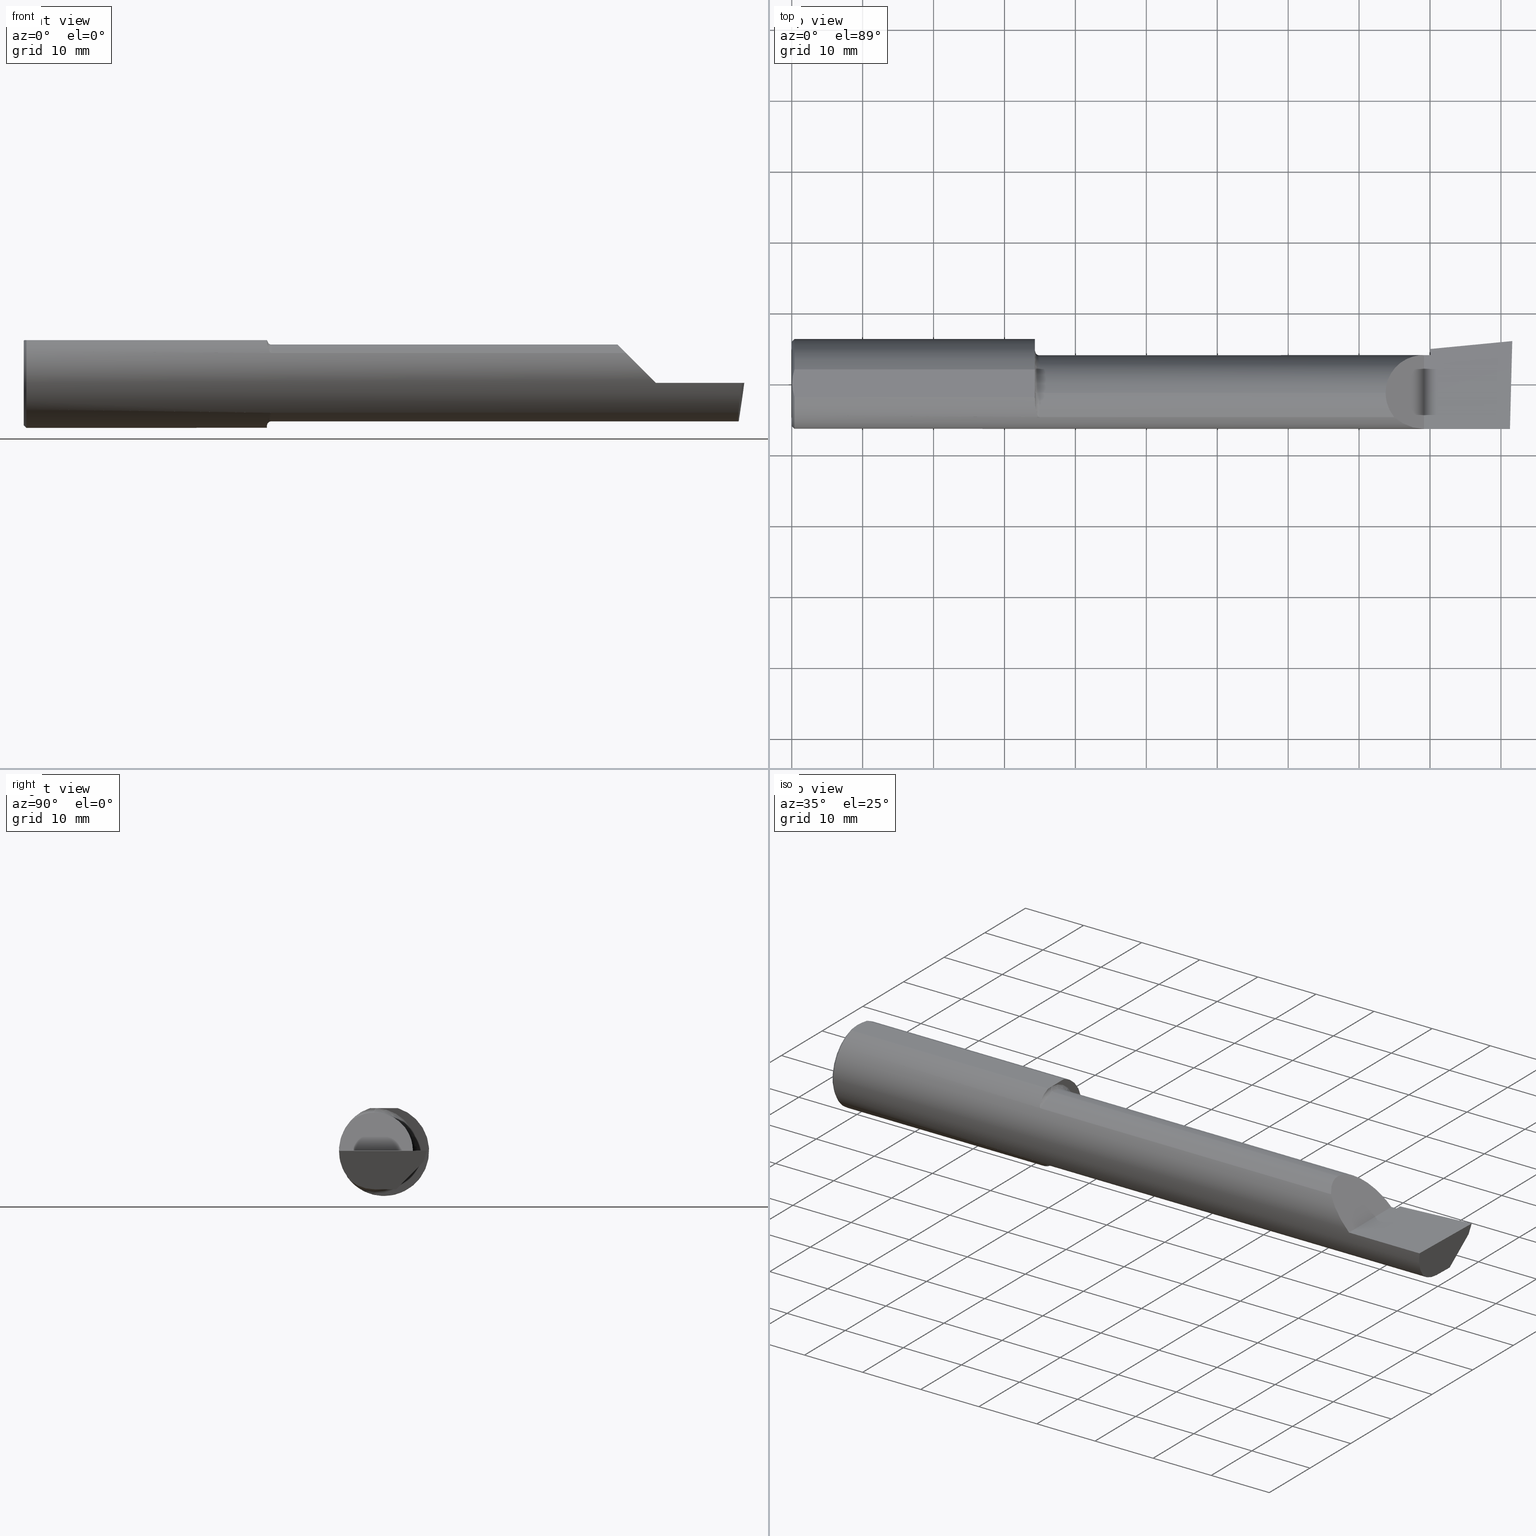
[diagram: canonical four-view strip — front | top / right | iso, engineering-drawing reading convention]
A machine part, canonical four-view strip (front | top / right | iso — engineering-drawing reading convention). The complete STEP part file that produces these views, byte-faithful:
ISO-10303-21;
HEADER;
FILE_DESCRIPTION (( 'STEP AP214' ),
    '1' );
FILE_NAME ('B4902600.STEP',
    '2020-05-06T20:04:31',
    ( '' ),
    ( '' ),
    'SwSTEP 2.0',
    'SolidWorks 2018',
    '' );
FILE_SCHEMA (( 'AUTOMOTIVE_DESIGN' ));
ENDSEC;

DATA;
#1 = CARTESIAN_POINT ( 'NONE',  ( 1.350000000000000089, -0.05299999999999996381, -0.2381499999999997230 ) ) ;
#2 = ORIENTED_EDGE ( 'NONE', *, *, #128, .F. ) ;
#3 = EDGE_LOOP ( 'NONE', ( #623, #166, #536, #9 ) ) ;
#4 = CARTESIAN_POINT ( 'NONE',  ( 0.0000000000000000000, -0.05299999999999998462, 0.0000000000000000000 ) ) ;
#5 = CARTESIAN_POINT ( 'NONE',  ( 1.357343635746627530, -0.1582230848692706138, 0.1936715022401943043 ) ) ;
#6 = ORIENTED_EDGE ( 'NONE', *, *, #563, .F. ) ;
#7 = LINE ( 'NONE', #620, #243 ) ;
#8 = DIRECTION ( 'NONE',  ( -0.02617694830786734816, -0.9996573249755573709, 1.707029659308873502E-16 ) ) ;
#9 = ORIENTED_EDGE ( 'NONE', *, *, #714, .T. ) ;
#10 = DIRECTION ( 'NONE',  ( 0.0000000000000000000, 1.000000000000000000, -1.138839417068643993E-16 ) ) ;
#11 = FACE_OUTER_BOUND ( 'NONE', #662, .T. ) ;
#12 = AXIS2_PLACEMENT_3D ( 'NONE', #591, #363, #705 ) ;
#13 = LINE ( 'NONE', #199, #346 ) ;
#14 = AXIS2_PLACEMENT_3D ( 'NONE', #500, #148, #673 ) ;
#15 =( NAMED_UNIT ( * ) PLANE_ANGLE_UNIT ( ) SI_UNIT ( $, .RADIAN. ) );
#16 = DIRECTION ( 'NONE',  ( 0.0000000000000000000, 0.0000000000000000000, -1.000000000000000000 ) ) ;
#17 = CARTESIAN_POINT ( 'NONE',  ( 0.01499999999999999771, 3.059780027669661931E-17, 0.2498499999999999888 ) ) ;
#18 = CARTESIAN_POINT ( 'NONE',  ( 3.991023571893939081, 0.2162715254282655264, -0.06841772571928600444 ) ) ;
#19 = ORIENTED_EDGE ( 'NONE', *, *, #257, .T. ) ;
#20 = ORIENTED_EDGE ( 'NONE', *, *, #26, .F. ) ;
#21 = CARTESIAN_POINT ( 'NONE',  ( 1.365875558094659992, -0.1799506819598047647, -0.1733486322212172137 ) ) ;
#22 = DIRECTION ( 'NONE',  ( 0.9953961983671787417, 0.09584575252022452252, -1.506002207992170530E-16 ) ) ;
#23 = DIRECTION ( 'NONE',  ( -0.1240019227989248435, -0.3022330132596637853, -0.9451342385281328307 ) ) ;
#24 = CIRCLE ( 'NONE', #391, 0.2498499999999999888 ) ;
#25 = EDGE_LOOP ( 'NONE', ( #215, #666, #601, #152, #20, #375, #288, #134 ) ) ;
#26 = EDGE_CURVE ( 'NONE', #619, #709, #82, .T. ) ;
#27 = EDGE_CURVE ( 'NONE', #598, #240, #383, .T. ) ;
#28 = ORIENTED_EDGE ( 'NONE', *, *, #257, .F. ) ;
#29 = DIRECTION ( 'NONE',  ( 0.06894566448119621160, -0.7160281025913035613, 0.6946583704589933683 ) ) ;
#30 = CARTESIAN_POINT ( 'NONE',  ( 0.01499999999998191669, -0.07650098038590480432, 0.2378500000000000059 ) ) ;
#31 = VERTEX_POINT ( 'NONE', #267 ) ;
#32 = B_SPLINE_CURVE_WITH_KNOTS ( 'NONE', 3,
 ( #671, #142, #497, #86 ),
 .UNSPECIFIED., .F., .F.,
 ( 4, 4 ),
 ( 0.4999999999997264966, 1.000000000000000000 ),
 .UNSPECIFIED. ) ;
#33 = LINE ( 'NONE', #452, #626 ) ;
#34 = CARTESIAN_POINT ( 'NONE',  ( 1.350000900032402251, -0.05299999999999998462, 0.2378500000000221548 ) ) ;
#35 = CARTESIAN_POINT ( 'NONE',  ( 0.0000000000000000000, 0.0000000000000000000, 0.0000000000000000000 ) ) ;
#36 = CARTESIAN_POINT ( 'NONE',  ( 3.344079160038588849, -0.1868028301886788811, 0.1659208399614091889 ) ) ;
#37 = CARTESIAN_POINT ( 'NONE',  ( 4.000000000000000000, -0.05299999999999998462, -0.2131499999999999229 ) ) ;
#38 = FACE_OUTER_BOUND ( 'NONE', #430, .T. ) ;
#39 = CARTESIAN_POINT ( 'NONE',  ( 1.367016733372314219, -0.1817333077058777002, -0.1714754572696056134 ) ) ;
#40 = DIRECTION ( 'NONE',  ( -1.000000000000000000, -0.0000000000000000000, -0.0000000000000000000 ) ) ;
#41 = DIRECTION ( 'NONE',  ( -1.000000000000000000, -0.0000000000000000000, -0.0000000000000000000 ) ) ;
#42 = ORIENTED_EDGE ( 'NONE', *, *, #299, .T. ) ;
#43 =( LENGTH_UNIT ( ) NAMED_UNIT ( * ) SI_UNIT ( $, .METRE. ) );
#44 = DIRECTION ( 'NONE',  ( 0.0000000000000000000, -1.000000000000000000, 1.138839417068643993E-16 ) ) ;
#45 = EDGE_CURVE ( 'NONE', #466, #260, #468, .T. ) ;
#46 = VECTOR ( 'NONE', #278, 39.37007874015748854 ) ;
#47 = CARTESIAN_POINT ( 'NONE',  ( 0.004092330037930641193, 0.02606142970188499164, 0.2378500000000000059 ) ) ;
#48 = EDGE_LOOP ( 'NONE', ( #677, #226, #568, #738, #364, #679, #366, #264, #114, #455, #528, #2, #168 ) ) ;
#49 = FACE_OUTER_BOUND ( 'NONE', #340, .T. ) ;
#50 = ORIENTED_EDGE ( 'NONE', *, *, #255, .T. ) ;
#51 = CARTESIAN_POINT ( 'NONE',  ( 3.544999999999999929, 0.05698775240724691937, -0.1825804393148461047 ) ) ;
#52 = ADVANCED_FACE ( 'NONE', ( #542 ), #389, .F. ) ;
#53 = CYLINDRICAL_SURFACE ( 'NONE', #404, 0.2498499999999999888 ) ;
#54 = CARTESIAN_POINT ( 'NONE',  ( 1.370144309637441271, -0.1849788583324340763, 0.1679547276881059592 ) ) ;
#55 = PRESENTATION_LAYER_ASSIGNMENT (  '', '', ( #624 ) ) ;
#56 = ORIENTED_EDGE ( 'NONE', *, *, #299, .F. ) ;
#57 = ORIENTED_EDGE ( 'NONE', *, *, #563, .T. ) ;
#58 = ADVANCED_FACE ( 'NONE', ( #234 ), #522, .F. ) ;
#59 = CARTESIAN_POINT ( 'NONE',  ( 1.350000000000000089, -0.04105010460297373043, 0.2378500000000000059 ) ) ;
#60 = ORIENTED_EDGE ( 'NONE', *, *, #483, .F. ) ;
#61 = CARTESIAN_POINT ( 'NONE',  ( 3.969369008890590411, 0.06819262280682612809, -0.2131499999999999506 ) ) ;
#62 = ORIENTED_EDGE ( 'NONE', *, *, #491, .T. ) ;
#63 = ORIENTED_EDGE ( 'NONE', *, *, #437, .F. ) ;
#64 = DIRECTION ( 'NONE',  ( 0.0000000000000000000, 0.0000000000000000000, 1.000000000000000000 ) ) ;
#65 = VERTEX_POINT ( 'NONE', #731 ) ;
#66 = DIRECTION ( 'NONE',  ( 0.0000000000000000000, 0.0000000000000000000, 1.000000000000000000 ) ) ;
#67 = VECTOR ( 'NONE', #149, 39.37007874015748143 ) ;
#68 = EDGE_CURVE ( 'NONE', #490, #217, #369, .T. ) ;
#69 = DIRECTION ( 'NONE',  ( -1.000000000000000000, 0.0000000000000000000, -0.0000000000000000000 ) ) ;
#70 = EDGE_LOOP ( 'NONE', ( #640, #717 ) ) ;
#71 = AXIS2_PLACEMENT_3D ( 'NONE', #380, #680, #341 ) ;
#72 = ORIENTED_EDGE ( 'NONE', *, *, #600, .F. ) ;
#73 = CARTESIAN_POINT ( 'NONE',  ( 1.350001800035617983, -0.04901601311796584259, 0.2378500024320483464 ) ) ;
#74 = DIRECTION ( 'NONE',  ( 1.000000000000000000, 0.0000000000000000000, 0.0000000000000000000 ) ) ;
#75 = CARTESIAN_POINT ( 'NONE',  ( 1.350000900032402251, -0.05299999999999998462, 0.2378500000000221548 ) ) ;
#76 = FACE_OUTER_BOUND ( 'NONE', #48, .T. ) ;
#77 =( BOUNDED_CURVE ( )  B_SPLINE_CURVE ( 3, ( #392, #281, #630, #36 ),
 .UNSPECIFIED., .F., .F. ) 
 B_SPLINE_CURVE_WITH_KNOTS ( ( 4, 4 ),
 ( 4.712388980384687898, 5.438654041019574059 ),
 .UNSPECIFIED. ) 
 CURVE ( )  GEOMETRIC_REPRESENTATION_ITEM ( )  RATIONAL_B_SPLINE_CURVE ( ( 1.000000000000000000, 0.9565258159410992000, 0.9565258159410992000, 1.000000000000000000 ) ) 
 REPRESENTATION_ITEM ( '' )  );
#78 = ORIENTED_EDGE ( 'NONE', *, *, #164, .F. ) ;
#79 = CARTESIAN_POINT ( 'NONE',  ( 0.0000000000000000000, -0.07650098038587477278, 0.2378500000000000059 ) ) ;
#80 = CARTESIAN_POINT ( 'NONE',  ( 1.350000000000000089, 0.07650098038587482829, 0.2378500000000000059 ) ) ;
#81 = AXIS2_PLACEMENT_3D ( 'NONE', #686, #558, #575 ) ;
#82 = LINE ( 'NONE', #79, #694 ) ;
#83 = CARTESIAN_POINT ( 'NONE',  ( 3.385139620819825446, 0.1601500000000000978, 0.1248603791801745633 ) ) ;
#84 = EDGE_CURVE ( 'NONE', #444, #203, #670, .T. ) ;
#85 = DIRECTION ( 'NONE',  ( -1.000000000000000000, -0.0000000000000000000, -0.0000000000000000000 ) ) ;
#86 = CARTESIAN_POINT ( 'NONE',  ( 1.350000000000000089, -0.06494989539702619719, 0.2378500000000000059 ) ) ;
#87 = CARTESIAN_POINT ( 'NONE',  ( 3.532795049205045501, 0.1343794326159072627, -0.1015966078791040172 ) ) ;
#88 = ORIENTED_EDGE ( 'NONE', *, *, #524, .T. ) ;
#89 = DIRECTION ( 'NONE',  ( 0.0000000000000000000, 0.0000000000000000000, 1.000000000000000000 ) ) ;
#90 = CARTESIAN_POINT ( 'NONE',  ( 3.509999999999999787, -0.2500000000000000555, -6.245698675651499853E-17 ) ) ;
#91 = VERTEX_POINT ( 'NONE', #496 ) ;
#92 = CARTESIAN_POINT ( 'NONE',  ( 0.003000000000000035624, 4.000210840755228160E-17, 0.2378500000000000059 ) ) ;
#93 = CARTESIAN_POINT ( 'NONE',  ( 1.369285582744839580, -0.1841881072713817125, -0.1688230283719341918 ) ) ;
#94 = B_SPLINE_CURVE_WITH_KNOTS ( 'NONE', 3,
 ( #59, #112, #73, #75 ),
 .UNSPECIFIED., .F., .F.,
 ( 4, 4 ),
 ( 0.0000000000000000000, 0.4999999999997264966 ),
 .UNSPECIFIED. ) ;
#95 = CARTESIAN_POINT ( 'NONE',  ( 3.528944985009564217, 0.1743638780700109969, -0.06000000000000001166 ) ) ;
#96 = DIRECTION ( 'NONE',  ( 0.0000000000000000000, 0.0000000000000000000, 1.000000000000000000 ) ) ;
#97 = CARTESIAN_POINT ( 'NONE',  ( 0.003000000000000061645, -0.01298133447204029636, 0.2378500000000000059 ) ) ;
#98 = CARTESIAN_POINT ( 'NONE',  ( 3.535684672073136081, 0.1043695517189344030, -0.2900000000000000910 ) ) ;
#99 = DIRECTION ( 'NONE',  ( -1.512967610748942321E-16, 0.0000000000000000000, -1.000000000000000000 ) ) ;
#100 = MECHANICAL_DESIGN_GEOMETRIC_PRESENTATION_REPRESENTATION (  '', ( #624 ), #139 ) ;
#101 = ORIENTED_EDGE ( 'NONE', *, *, #84, .T. ) ;
#102 = DIRECTION ( 'NONE',  ( -0.0000000000000000000, 1.000000000000000000, -0.0000000000000000000 ) ) ;
#103 = B_SPLINE_CURVE_WITH_KNOTS ( 'NONE', 3,
 ( #222, #446, #216, #156, #93, #39, #21, #569, #625, #635, #742, #727, #615, #508 ),
 .UNSPECIFIED., .F., .F.,
 ( 4, 2, 2, 2, 2, 2, 4 ),
 ( 1.967619685287234863E-07, 0.0001090840123077923190, 0.0002179712626470558959, 0.0004357457633255831038, 0.0008712947646826356765, 0.001742392767396749604, 0.003484588772824973556 ),
 .UNSPECIFIED. ) ;
#104 = LINE ( 'NONE', #293, #417 ) ;
#105 = DIRECTION ( 'NONE',  ( 0.0000000000000000000, 0.0000000000000000000, -1.000000000000000000 ) ) ;
#106 =( LENGTH_UNIT ( ) NAMED_UNIT ( * ) SI_UNIT ( $, .METRE. ) );
#107 = CARTESIAN_POINT ( 'NONE',  ( 3.509999999999999787, -0.2498499999999999610, -6.245698675651499853E-17 ) ) ;
#108 =( NAMED_UNIT ( * ) PLANE_ANGLE_UNIT ( ) SI_UNIT ( $, .RADIAN. ) );
#109 = ORIENTED_EDGE ( 'NONE', *, *, #608, .T. ) ;
#110 = LINE ( 'NONE', #668, #270 ) ;
#111 = B_SPLINE_CURVE_WITH_KNOTS ( 'NONE', 3,
 ( #523, #190, #47, #531, #183, #163 ),
 .UNSPECIFIED., .F., .F.,
 ( 4, 2, 4 ),
 ( 0.004653101494310745746, 0.005634627094920350784, 0.006616152695529954955 ),
 .UNSPECIFIED. ) ;
#112 = CARTESIAN_POINT ( 'NONE',  ( 1.350000000000000089, -0.04503596074371485347, 0.2378500000000000059 ) ) ;
#113 = LINE ( 'NONE', #272, #406 ) ;
#114 = ORIENTED_EDGE ( 'NONE', *, *, #209, .F. ) ;
#115 = EDGE_CURVE ( 'NONE', #91, #428, #208, .T. ) ;
#116 = ORIENTED_EDGE ( 'NONE', *, *, #517, .T. ) ;
#117 = CARTESIAN_POINT ( 'NONE',  ( 3.544999999999999929, 0.1943384830701196664, 0.0000000000000000000 ) ) ;
#118 = CARTESIAN_POINT ( 'NONE',  ( 0.004068542164723859197, -0.02585015905295368760, 0.2378499999999999226 ) ) ;
#119 =( BOUNDED_CURVE ( )  B_SPLINE_CURVE ( 3, ( #275, #210, #724, #767 ),
 .UNSPECIFIED., .F., .F. ) 
 B_SPLINE_CURVE_WITH_KNOTS ( ( 4, 4 ),
 ( 0.6344818218798813358, 1.360746882514760836 ),
 .UNSPECIFIED. ) 
 CURVE ( )  GEOMETRIC_REPRESENTATION_ITEM ( )  RATIONAL_B_SPLINE_CURVE ( ( 1.000000000000000000, 0.9565258159410998662, 0.9565258159410998662, 1.000000000000000000 ) ) 
 REPRESENTATION_ITEM ( '' )  );
#120 = VERTEX_POINT ( 'NONE', #559 ) ;
#121 = DIRECTION ( 'NONE',  ( -1.000000000000000000, -0.0000000000000000000, -0.0000000000000000000 ) ) ;
#122 = VECTOR ( 'NONE', #499, 39.37007874015748143 ) ;
#123 = ADVANCED_FACE ( 'NONE', ( #352 ), #642, .T. ) ;
#124 = SHAPE_DEFINITION_REPRESENTATION ( #698, #263 ) ;
#125 = AXIS2_PLACEMENT_3D ( 'NONE', #689, #578, #231 ) ;
#126 = VECTOR ( 'NONE', #23, 39.37007874015748854 ) ;
#127 = AXIS2_PLACEMENT_3D ( 'NONE', #530, #384, #339 ) ;
#128 = EDGE_CURVE ( 'NONE', #699, #641, #24, .T. ) ;
#129 = CARTESIAN_POINT ( 'NONE',  ( 1.350000000000000089, -0.05299999999999998462, 0.0000000000000000000 ) ) ;
#130 = DIRECTION ( 'NONE',  ( -1.000000000000000000, -0.0000000000000000000, -0.0000000000000000000 ) ) ;
#131 = ORIENTED_EDGE ( 'NONE', *, *, #599, .T. ) ;
#132 = VERTEX_POINT ( 'NONE', #271 ) ;
#133 = PLANE ( 'NONE',  #360 ) ;
#134 = ORIENTED_EDGE ( 'NONE', *, *, #525, .F. ) ;
#135 = ORIENTED_EDGE ( 'NONE', *, *, #710, .T. ) ;
#136 = CARTESIAN_POINT ( 'NONE',  ( 4.000000000000000000, 0.2998500000000000609, 0.2378499999999999504 ) ) ;
#137 = ORIENTED_EDGE ( 'NONE', *, *, #365, .F. ) ;
#138 = ORIENTED_EDGE ( 'NONE', *, *, #482, .T. ) ;
#139 =( GEOMETRIC_REPRESENTATION_CONTEXT ( 3 ) GLOBAL_UNCERTAINTY_ASSIGNED_CONTEXT ( ( #762 ) ) GLOBAL_UNIT_ASSIGNED_CONTEXT ( ( #708, #15, #610 ) ) REPRESENTATION_CONTEXT ( 'NONE', 'WORKASPACE' ) );
#140 = LINE ( 'NONE', #236, #594 ) ;
#141 = DIRECTION ( 'NONE',  ( 0.0000000000000000000, -1.000000000000000000, 0.0000000000000000000 ) ) ;
#142 = CARTESIAN_POINT ( 'NONE',  ( 1.350001800093990401, -0.05698398688203849816, 0.2378499975680403167 ) ) ;
#143 = ORIENTED_EDGE ( 'NONE', *, *, #753, .F. ) ;
#144 = CARTESIAN_POINT ( 'NONE',  ( 0.9762916401177922365, -0.05299999999999998462, 3.208848816020454083E-16 ) ) ;
#145 = DIRECTION ( 'NONE',  ( 1.000000000000000000, 0.0000000000000000000, 0.0000000000000000000 ) ) ;
#146 = VERTEX_POINT ( 'NONE', #179 ) ;
#147 = CARTESIAN_POINT ( 'NONE',  ( 3.983714411583731518, 0.1632262006094472029, -0.1166167083458063830 ) ) ;
#148 = DIRECTION ( 'NONE',  ( 1.000000000000000000, 0.0000000000000000000, 0.0000000000000000000 ) ) ;
#149 = DIRECTION ( 'NONE',  ( 0.7071067811865391350, 0.0000000000000000000, -0.7071067811865558994 ) ) ;
#150 = DIRECTION ( 'NONE',  ( -1.000000000000000000, 5.691349986800549142E-18, -0.0000000000000000000 ) ) ;
#151 = PRODUCT ( 'B4902600', 'B4902600', '', ( #639 ) ) ;
#152 = ORIENTED_EDGE ( 'NONE', *, *, #405, .F. ) ;
#153 = ORIENTED_EDGE ( 'NONE', *, *, #600, .T. ) ;
#154 = CARTESIAN_POINT ( 'NONE',  ( 3.544999999999999929, 0.1943384830701256338, -1.835999299118473954E-15 ) ) ;
#155 = FACE_OUTER_BOUND ( 'NONE', #3, .T. ) ;
#156 = CARTESIAN_POINT ( 'NONE',  ( 1.370138573936399817, -0.1849738682364336917, -0.1679602226613243765 ) ) ;
#157 = CARTESIAN_POINT ( 'NONE',  ( 0.008160184410935175658, -0.05138200716576606791, 0.2378500000000000336 ) ) ;
#158 = CIRCLE ( 'NONE', #475, 0.02499999999999997363 ) ;
#159 =( NAMED_UNIT ( * ) PLANE_ANGLE_UNIT ( ) SI_UNIT ( $, .RADIAN. ) );
#160 = PRODUCT_DEFINITION ( 'UNKNOWN', '', #202, #276 ) ;
#161 = DIRECTION ( 'NONE',  ( -1.000000000000000000, -0.0000000000000000000, -0.0000000000000000000 ) ) ;
#162 = B_SPLINE_CURVE_WITH_KNOTS ( 'NONE', 3,
 ( #244, #169, #464, #550, #425, #191, #5, #749, #298, #371, #315, #712, #54, #195, #488, #427 ),
 .UNSPECIFIED., .F., .F.,
 ( 4, 2, 2, 2, 2, 2, 2, 4 ),
 ( 0.0001034694911878371434, 0.0009591263138367668280, 0.001814783136485696377, 0.002670439959134626035, 0.003098268370459088695, 0.003312182576121323278, 0.003419139678952434931, 0.003526096781783545717 ),
 .UNSPECIFIED. ) ;
#163 = CARTESIAN_POINT ( 'NONE',  ( 0.01499999999999999771, 0.07650098038587481442, 0.2378500000000000059 ) ) ;
#164 = EDGE_CURVE ( 'NONE', #485, #229, #119, .T. ) ;
#165 = CARTESIAN_POINT ( 'NONE',  ( 1.375000000000000000, -0.05299999999999998462, 0.0000000000000000000 ) ) ;
#166 = ORIENTED_EDGE ( 'NONE', *, *, #297, .T. ) ;
#167 = DIRECTION ( 'NONE',  ( -0.0000000000000000000, 0.0000000000000000000, 1.000000000000000000 ) ) ;
#168 = ORIENTED_EDGE ( 'NONE', *, *, #372, .F. ) ;
#169 = CARTESIAN_POINT ( 'NONE',  ( 1.349999999999999867, -0.09104204635388273015, 0.2329453649474652333 ) ) ;
#170 = CARTESIAN_POINT ( 'NONE',  ( 1.375000000000000000, -0.05299999999999998462, 0.2131499999999996731 ) ) ;
#171 = CARTESIAN_POINT ( 'NONE',  ( 3.544999999999999929, 0.05698775240724691937, -0.1825804393148461047 ) ) ;
#172 = ORIENTED_EDGE ( 'NONE', *, *, #68, .F. ) ;
#173 = LINE ( 'NONE', #510, #322 ) ;
#174 = CARTESIAN_POINT ( 'NONE',  ( 1.375000000000000000, -0.05299999999999998462, 0.0000000000000000000 ) ) ;
#175 = PRESENTATION_STYLE_ASSIGNMENT (( #402 ) ) ;
#176 = CARTESIAN_POINT ( 'NONE',  ( 0.0000000000000000000, 0.07650098038587481442, 0.2378500000000000059 ) ) ;
#177 = ADVANCED_FACE ( 'NONE', ( #334 ), #308, .T. ) ;
#178 = CARTESIAN_POINT ( 'NONE',  ( 1.375000000000000000, -0.1868028301886802411, -0.1659208399614077178 ) ) ;
#179 = CARTESIAN_POINT ( 'NONE',  ( 0.0000000000000000000, 0.0000000000000000000, -0.2348499999999996424 ) ) ;
#180 = CARTESIAN_POINT ( 'NONE',  ( 0.01499999999999999771, 0.07650098038587481442, 0.2378500000000000059 ) ) ;
#181 = AXIS2_PLACEMENT_3D ( 'NONE', #457, #40, #228 ) ;
#182 = CYLINDRICAL_SURFACE ( 'NONE', #323, 0.2131499999999998951 ) ;
#183 = CARTESIAN_POINT ( 'NONE',  ( 0.01120763235350239959, 0.06411521680875344187, 0.2378500000000000336 ) ) ;
#184 = DIRECTION ( 'NONE',  ( -0.0000000000000000000, 0.0000000000000000000, 1.000000000000000000 ) ) ;
#185 = CARTESIAN_POINT ( 'NONE',  ( 3.965703997523709390, -0.1485302233682062878, -0.1967848538638754252 ) ) ;
#186 = ADVANCED_FACE ( 'NONE', ( #192 ), #252, .F. ) ;
#187 = AXIS2_PLACEMENT_3D ( 'NONE', #282, #681, #342 ) ;
#188 = ORIENTED_EDGE ( 'NONE', *, *, #676, .F. ) ;
#189 = VERTEX_POINT ( 'NONE', #539 ) ;
#190 = CARTESIAN_POINT ( 'NONE',  ( 0.003000000000000063380, 0.01299872814765622858, 0.2378499999999999226 ) ) ;
#191 = CARTESIAN_POINT ( 'NONE',  ( 1.355553274544309295, -0.1495649063853957961, 0.2004446339470377925 ) ) ;
#192 = FACE_OUTER_BOUND ( 'NONE', #351, .T. ) ;
#193 = CARTESIAN_POINT ( 'NONE',  ( 1.375000000000000000, -0.05299999999999998462, 0.0000000000000000000 ) ) ;
#194 = FACE_OUTER_BOUND ( 'NONE', #573, .T. ) ;
#195 = CARTESIAN_POINT ( 'NONE',  ( 1.372243150415551449, -0.1862809296394754566, 0.1665094106511980643 ) ) ;
#196 = DIRECTION ( 'NONE',  ( -1.000000000000000000, -0.0000000000000000000, -0.0000000000000000000 ) ) ;
#197 = FACE_OUTER_BOUND ( 'NONE', #516, .T. ) ;
#198 = MANIFOLD_SOLID_BREP ( 'F3BC91BB-F8AC-4688-A094-8B09E99CF70F-GAAFaceID11', #621 ) ;
#199 = CARTESIAN_POINT ( 'NONE',  ( 3.544999999999999929, 0.2148312740513257935, -0.01988118725737609768 ) ) ;
#200 = VECTOR ( 'NONE', #8, 39.37007874015748143 ) ;
#201 = CARTESIAN_POINT ( 'NONE',  ( 3.534569588231495807, 0.1159501401920711994, -0.1355866241796522265 ) ) ;
#202 = PRODUCT_DEFINITION_FORMATION_WITH_SPECIFIED_SOURCE ( 'ANY', '', #151, .NOT_KNOWN. ) ;
#203 = VERTEX_POINT ( 'NONE', #61 ) ;
#204 = CARTESIAN_POINT ( 'NONE',  ( 1.350000000000000089, -0.07650098038590487370, 0.2378500000000000059 ) ) ;
#205 = DIRECTION ( 'NONE',  ( 1.000000000000000000, 0.0000000000000000000, 0.0000000000000000000 ) ) ;
#206 = CARTESIAN_POINT ( 'NONE',  ( 3.988156289907357266, 0.07000163221415003911, -0.2131499999999999506 ) ) ;
#207 = EDGE_CURVE ( 'NONE', #598, #260, #629, .T. ) ;
#208 = LINE ( 'NONE', #144, #495 ) ;
#209 = EDGE_CURVE ( 'NONE', #757, #709, #356, .T. ) ;
#210 = CARTESIAN_POINT ( 'NONE',  ( 3.973097331270538213, -0.2278791102234775934, -0.1196748990301323284 ) ) ;
#211 = CARTESIAN_POINT ( 'NONE',  ( 1.350000000000000089, -0.08036415094339748044, -0.2365726648265746579 ) ) ;
#212 = DIRECTION ( 'NONE',  ( 0.0000000000000000000, -0.6963153109074924352, -0.7177360153954949196 ) ) ;
#213 = VECTOR ( 'NONE', #735, 39.37007874015748854 ) ;
#214 = CARTESIAN_POINT ( 'NONE',  ( 1.350000000000000089, -0.06494989539702619719, 0.2378500000000000059 ) ) ;
#215 = ORIENTED_EDGE ( 'NONE', *, *, #297, .F. ) ;
#216 = CARTESIAN_POINT ( 'NONE',  ( 1.372232603162240716, -0.1862758070845882685, -0.1665151405181416744 ) ) ;
#217 = VERTEX_POINT ( 'NONE', #410 ) ;
#218 = CARTESIAN_POINT ( 'NONE',  ( 0.0000000000000000000, 2.967931517733664878E-17, 0.2348499999999996424 ) ) ;
#219 = PLANE ( 'NONE',  #327 ) ;
#220 = CARTESIAN_POINT ( 'NONE',  ( 3.987226101480002782, -0.2496655036952227236, -1.346597502108382119E-16 ) ) ;
#221 = CIRCLE ( 'NONE', #368, 0.2131499999999996731 ) ;
#222 = CARTESIAN_POINT ( 'NONE',  ( 1.375000000000000000, -0.1868028301886802411, -0.1659208399614077178 ) ) ;
#223 = DIRECTION ( 'NONE',  ( 0.9953961983671800740, 0.09584575252021045044, -3.461085361674896978E-14 ) ) ;
#224 = FILL_AREA_STYLE_COLOUR ( '', #487 ) ;
#225 = ORIENTED_EDGE ( 'NONE', *, *, #405, .T. ) ;
#226 = ORIENTED_EDGE ( 'NONE', *, *, #164, .T. ) ;
#227 = CARTESIAN_POINT ( 'NONE',  ( 3.532795049205045501, 0.1343794326159072627, -0.1015966078791040172 ) ) ;
#228 = DIRECTION ( 'NONE',  ( 0.0000000000000000000, 0.0000000000000000000, 1.000000000000000000 ) ) ;
#229 = VERTEX_POINT ( 'NONE', #348 ) ;
#230 = AXIS2_PLACEMENT_3D ( 'NONE', #90, #337, #732 ) ;
#231 = DIRECTION ( 'NONE',  ( 1.000000000000000000, 0.0000000000000000000, 0.0000000000000000000 ) ) ;
#232 = DIRECTION ( 'NONE',  ( 0.0000000000000000000, 0.0000000000000000000, 1.000000000000000000 ) ) ;
#233 = ORIENTED_EDGE ( 'NONE', *, *, #579, .T. ) ;
#234 = FACE_OUTER_BOUND ( 'NONE', #259, .T. ) ;
#235 = DIRECTION ( 'NONE',  ( 0.0000000000000000000, 0.6963153109074924352, 0.7177360153954949196 ) ) ;
#236 = CARTESIAN_POINT ( 'NONE',  ( 2.459999999999999964, -0.1868028301886797693, 0.1659208399614083285 ) ) ;
#237 = CIRCLE ( 'NONE', #187, 0.2381499999999997230 ) ;
#238 = CARTESIAN_POINT ( 'NONE',  ( 0.0000000000000000000, -0.05299999999999996381, -0.2131499999999998951 ) ) ;
#239 = CARTESIAN_POINT ( 'NONE',  ( 3.964907988924521121, -0.1021668565906571902, -0.2131499999999998951 ) ) ;
#240 = VERTEX_POINT ( 'NONE', #513 ) ;
#241 = AXIS2_PLACEMENT_3D ( 'NONE', #447, #729, #385 ) ;
#242 = CARTESIAN_POINT ( 'NONE',  ( 3.543466858877804881, 0.05663251955088018097, -0.1827944341085904756 ) ) ;
#243 = VECTOR ( 'NONE', #737, 39.37007874015748143 ) ;
#244 = CARTESIAN_POINT ( 'NONE',  ( 1.350000000000000089, -0.08036415094339748044, 0.2365726648265746579 ) ) ;
#245 = DIRECTION ( 'NONE',  ( -1.000000000000000000, -0.0000000000000000000, -0.0000000000000000000 ) ) ;
#246 = ADVANCED_FACE ( 'NONE', ( #505 ), #486, .T. ) ;
#247 = AXIS2_PLACEMENT_3D ( 'NONE', #129, #253, #301 ) ;
#248 = SURFACE_SIDE_STYLE ('',( #617 ) ) ;
#249 = ORIENTED_EDGE ( 'NONE', *, *, #115, .F. ) ;
#250 = ADVANCED_FACE ( 'NONE', ( #197 ), #326, .T. ) ;
#251 = PRODUCT_RELATED_PRODUCT_CATEGORY ( 'part', '', ( #151 ) ) ;
#252 = PLANE ( 'NONE',  #12 ) ;
#253 = DIRECTION ( 'NONE',  ( -1.000000000000000000, -0.0000000000000000000, -0.0000000000000000000 ) ) ;
#254 = DIRECTION ( 'NONE',  ( 0.0000000000000000000, 0.0000000000000000000, 1.000000000000000000 ) ) ;
#255 = EDGE_CURVE ( 'NONE', #466, #260, #343, .T. ) ;
#256 = DIRECTION ( 'NONE',  ( -1.000000000000000000, -0.0000000000000000000, -0.0000000000000000000 ) ) ;
#257 = EDGE_CURVE ( 'NONE', #217, #545, #663, .T. ) ;
#258 = FACE_OUTER_BOUND ( 'NONE', #283, .T. ) ;
#259 = EDGE_LOOP ( 'NONE', ( #72, #350, #6, #277, #138 ) ) ;
#260 = VERTEX_POINT ( 'NONE', #567 ) ;
#261 = ORIENTED_EDGE ( 'NONE', *, *, #723, .T. ) ;
#262 = CARTESIAN_POINT ( 'NONE',  ( 0.01499999999999999771, 0.0000000000000000000, 0.0000000000000000000 ) ) ;
#263 = ADVANCED_BREP_SHAPE_REPRESENTATION ( 'B4902600', ( #198, #125 ), #422 ) ;
#264 = ORIENTED_EDGE ( 'NONE', *, *, #26, .T. ) ;
#265 = VERTEX_POINT ( 'NONE', #34 ) ;
#266 = FACE_OUTER_BOUND ( 'NONE', #379, .T. ) ;
#267 = CARTESIAN_POINT ( 'NONE',  ( 3.544999999999999929, 0.1328281892403430087, -0.1044069278527783723 ) ) ;
#268 = AXIS2_PLACEMENT_3D ( 'NONE', #35, #453, #96 ) ;
#269 = CARTESIAN_POINT ( 'NONE',  ( 0.0000000000000000000, 0.0000000000000000000, 0.0000000000000000000 ) ) ;
#270 = VECTOR ( 'NONE', #612, 39.37007874015748143 ) ;
#271 = CARTESIAN_POINT ( 'NONE',  ( 3.544999999999999929, 0.1759098001822370361, -0.06000000000000001166 ) ) ;
#272 = CARTESIAN_POINT ( 'NONE',  ( 0.0000000000000000000, -0.05299999999999998462, 0.2131499999999998951 ) ) ;
#273 = VECTOR ( 'NONE', #726, 39.37007874015748854 ) ;
#274 = CARTESIAN_POINT ( 'NONE',  ( 3.992127980275558041, 0.2189633278254521642, -0.05999999999999999778 ) ) ;
#275 = CARTESIAN_POINT ( 'NONE',  ( 3.968492717492760669, -0.1868028301886797693, -0.1659208399614083285 ) ) ;
#276 = PRODUCT_DEFINITION_CONTEXT ( 'detailed design', #295, 'design' ) ;
#277 = ORIENTED_EDGE ( 'NONE', *, *, #562, .T. ) ;
#278 = DIRECTION ( 'NONE',  ( -0.1053106618241713144, -0.6976485211320172519, -0.7086580314005226366 ) ) ;
#279 = PLANE ( 'NONE',  #230 ) ;
#280 = AXIS2_PLACEMENT_3D ( 'NONE', #325, #29, #212 ) ;
#281 = CARTESIAN_POINT ( 'NONE',  ( 3.448145753305723815, -0.2498500000000001275, 0.06185424669427486838 ) ) ;
#282 = CARTESIAN_POINT ( 'NONE',  ( 1.350000000000000089, -0.05299999999999998462, 0.0000000000000000000 ) ) ;
#283 = EDGE_LOOP ( 'NONE', ( #388, #399, #116, #426, #433 ) ) ;
#284 = DIRECTION ( 'NONE',  ( -1.000000000000000000, -0.0000000000000000000, -0.0000000000000000000 ) ) ;
#285 = CARTESIAN_POINT ( 'NONE',  ( 0.01499999999999999771, 0.0000000000000000000, -0.2498499999999999888 ) ) ;
#286 =( BOUNDED_CURVE ( )  B_SPLINE_CURVE ( 3, ( #87, #616, #335, #730 ),
 .UNSPECIFIED., .F., .F. ) 
 B_SPLINE_CURVE_WITH_KNOTS ( ( 4, 4 ),
 ( 2.868174658477174788, 2.883234730632702192 ),
 .UNSPECIFIED. ) 
 CURVE ( )  GEOMETRIC_REPRESENTATION_ITEM ( )  RATIONAL_B_SPLINE_CURVE ( ( 1.000000000000000000, 0.9999810996081960335, 0.9999810996081960335, 1.000000000000000000 ) ) 
 REPRESENTATION_ITEM ( '' )  );
#287 = ORIENTED_EDGE ( 'NONE', *, *, #401, .F. ) ;
#288 = ORIENTED_EDGE ( 'NONE', *, *, #643, .F. ) ;
#289 = CARTESIAN_POINT ( 'NONE',  ( 0.01120982745448978989, -0.06412238594540857484, 0.2378500000000000336 ) ) ;
#290 = LINE ( 'NONE', #17, #122 ) ;
#291 = PLANE ( 'NONE',  #607 ) ;
#292 = DIRECTION ( 'NONE',  ( 0.0000000000000000000, 0.0000000000000000000, -1.000000000000000000 ) ) ;
#293 = CARTESIAN_POINT ( 'NONE',  ( 4.000000000000000000, -0.05299999999999998462, -0.2131499999999999229 ) ) ;
#294 = LINE ( 'NONE', #436, #721 ) ;
#295 = APPLICATION_CONTEXT ( 'automotive_design' ) ;
#296 = AXIS2_PLACEMENT_3D ( 'NONE', #174, #130, #354 ) ;
#297 = EDGE_CURVE ( 'NONE', #641, #321, #33, .T. ) ;
#298 = CARTESIAN_POINT ( 'NONE',  ( 1.362758562425230080, -0.1743135686468875178, 0.1790760091940033216 ) ) ;
#299 = EDGE_CURVE ( 'NONE', #646, #91, #173, .T. ) ;
#300 = ORIENTED_EDGE ( 'NONE', *, *, #555, .T. ) ;
#301 = DIRECTION ( 'NONE',  ( 0.0000000000000000000, 0.0000000000000000000, 1.000000000000000000 ) ) ;
#302 = LENGTH_MEASURE_WITH_UNIT ( LENGTH_MEASURE( 0.02539999999999999897 ), #477 );
#303 = DIRECTION ( 'NONE',  ( 0.0000000000000000000, 0.0000000000000000000, 1.000000000000000000 ) ) ;
#304 = ORIENTED_EDGE ( 'NONE', *, *, #669, .F. ) ;
#305 = ORIENTED_EDGE ( 'NONE', *, *, #714, .F. ) ;
#306 = ADVANCED_FACE ( 'NONE', ( #155 ), #345, .T. ) ;
#307 = VECTOR ( 'NONE', #650, 39.37007874015748143 ) ;
#308 = PLANE ( 'NONE',  #584 ) ;
#309 = AXIS2_PLACEMENT_3D ( 'NONE', #627, #284, #684 ) ;
#310 = ADVANCED_FACE ( 'NONE', ( #472 ), #291, .F. ) ;
#311 = SURFACE_STYLE_USAGE ( .BOTH. , #248 ) ;
#312 = DIRECTION ( 'NONE',  ( 0.0000000000000000000, 0.0000000000000000000, -1.000000000000000000 ) ) ;
#313 = CARTESIAN_POINT ( 'NONE',  ( 0.0000000000000000000, 0.0000000000000000000, 0.0000000000000000000 ) ) ;
#314 = ORIENTED_EDGE ( 'NONE', *, *, #768, .T. ) ;
#315 = CARTESIAN_POINT ( 'NONE',  ( 1.367018584423771888, -0.1817363555988623924, 0.1714722504633794664 ) ) ;
#316 = VERTEX_POINT ( 'NONE', #576 ) ;
#317 = AXIS2_PLACEMENT_3D ( 'NONE', #618, #678, #449 ) ;
#318 = VERTEX_POINT ( 'NONE', #648 ) ;
#319 = CARTESIAN_POINT ( 'NONE',  ( 3.968492717492760669, -0.1868028301886797693, -0.1659208399614083285 ) ) ;
#320 = ORIENTED_EDGE ( 'NONE', *, *, #479, .F. ) ;
#321 = VERTEX_POINT ( 'NONE', #636 ) ;
#322 = VECTOR ( 'NONE', #631, 39.37007874015748143 ) ;
#323 = AXIS2_PLACEMENT_3D ( 'NONE', #4, #752, #66 ) ;
#324 = CIRCLE ( 'NONE', #247, 0.2381499999999997230 ) ;
#325 = CARTESIAN_POINT ( 'NONE',  ( 3.528944985009564217, 0.1743638780700109969, -0.06000000000000001166 ) ) ;
#326 = PLANE ( 'NONE',  #419 ) ;
#327 = AXIS2_PLACEMENT_3D ( 'NONE', #136, #519, #10 ) ;
#328 = VERTEX_POINT ( 'NONE', #107 ) ;
#329 = VERTEX_POINT ( 'NONE', #170 ) ;
#330 = PLANE ( 'NONE',  #744 ) ;
#331 = EDGE_CURVE ( 'NONE', #229, #328, #604, .T. ) ;
#332 = EDGE_CURVE ( 'NONE', #603, #641, #758, .T. ) ;
#333 = CARTESIAN_POINT ( 'NONE',  ( 3.509999999999999787, -0.2500000000000000555, -6.245698675651499853E-17 ) ) ;
#334 = FACE_OUTER_BOUND ( 'NONE', #470, .T. ) ;
#335 = CARTESIAN_POINT ( 'NONE',  ( 3.541044210672212866, 0.1333523194825135538, -0.1034740570574033958 ) ) ;
#336 = CARTESIAN_POINT ( 'NONE',  ( 0.01499999999998191669, -0.07650098038590480432, 0.2378500000000000059 ) ) ;
#337 = DIRECTION ( 'NONE',  ( -0.7071067811865439090, 0.0000000000000000000, -0.7071067811865511255 ) ) ;
#338 = ORIENTED_EDGE ( 'NONE', *, *, #372, .T. ) ;
#339 = DIRECTION ( 'NONE',  ( 0.1219104985252742746, 0.0000000000000000000, 0.9925410975618687015 ) ) ;
#340 = EDGE_LOOP ( 'NONE', ( #564, #377, #249, #56, #548, #667 ) ) ;
#341 = DIRECTION ( 'NONE',  ( 0.0000000000000000000, 0.0000000000000000000, 1.000000000000000000 ) ) ;
#342 = DIRECTION ( 'NONE',  ( 0.0000000000000000000, 0.0000000000000000000, 1.000000000000000000 ) ) ;
#343 = LINE ( 'NONE', #95, #649 ) ;
#344 = SURFACE_STYLE_FILL_AREA ( #349 ) ;
#345 = PLANE ( 'NONE',  #540 ) ;
#346 = VECTOR ( 'NONE', #235, 39.37007874015748143 ) ;
#347 = CARTESIAN_POINT ( 'NONE',  ( 1.350000000000000089, 0.1851499999999997315, 0.0000000000000000000 ) ) ;
#348 = CARTESIAN_POINT ( 'NONE',  ( 3.987221270274236229, -0.2498499999999999888, -1.346590301211604612E-16 ) ) ;
#349 = FILL_AREA_STYLE ('',( #224 ) ) ;
#350 = ORIENTED_EDGE ( 'NONE', *, *, #643, .T. ) ;
#351 = EDGE_LOOP ( 'NONE', ( #481, #109, #571, #733 ) ) ;
#352 = FACE_OUTER_BOUND ( 'NONE', #537, .T. ) ;
#353 = VECTOR ( 'NONE', #685, 39.37007874015748854 ) ;
#354 = DIRECTION ( 'NONE',  ( 0.0000000000000000000, 0.0000000000000000000, 1.000000000000000000 ) ) ;
#355 = ORIENTED_EDGE ( 'NONE', *, *, #658, .T. ) ;
#356 = CIRCLE ( 'NONE', #181, 0.2498499999999999888 ) ;
#357 = CARTESIAN_POINT ( 'NONE',  ( 7.089685198749692867E-32, -0.2498499999999999610, 4.685946446163635703E-16 ) ) ;
#358 = DIRECTION ( 'NONE',  ( 0.0000000000000000000, 0.0000000000000000000, 1.000000000000000000 ) ) ;
#359 = LINE ( 'NONE', #748, #200 ) ;
#360 = AXIS2_PLACEMENT_3D ( 'NONE', #117, #69, #167 ) ;
#361 =( BOUNDED_CURVE ( )  B_SPLINE_CURVE ( 3, ( #535, #763, #502, #494 ),
 .UNSPECIFIED., .F., .F. ) 
 B_SPLINE_CURVE_WITH_KNOTS ( ( 4, 4 ),
 ( 5.604538515477350380, 6.283185307179586232 ),
 .UNSPECIFIED. ) 
 CURVE ( )  GEOMETRIC_REPRESENTATION_ITEM ( )  RATIONAL_B_SPLINE_CURVE ( ( 1.000000000000000000, 0.9619867256453027426, 0.9619867256453027426, 1.000000000000000000 ) ) 
 REPRESENTATION_ITEM ( '' )  );
#362 = ADVANCED_FACE ( 'NONE', ( #11 ), #589, .F. ) ;
#363 = DIRECTION ( 'NONE',  ( 0.09165774897393341725, -0.9519021185660615503, 0.2923717047227301635 ) ) ;
#364 = ORIENTED_EDGE ( 'NONE', *, *, #599, .F. ) ;
#365 = EDGE_CURVE ( 'NONE', #463, #189, #574, .T. ) ;
#366 = ORIENTED_EDGE ( 'NONE', *, *, #674, .F. ) ;
#367 = CARTESIAN_POINT ( 'NONE',  ( 0.0000000000000000000, 0.0000000000000000000, 0.0000000000000000000 ) ) ;
#368 = AXIS2_PLACEMENT_3D ( 'NONE', #193, #256, #544 ) ;
#369 = CIRCLE ( 'NONE', #241, 0.02499999999999997363 ) ;
#370 = EDGE_CURVE ( 'NONE', #751, #463, #361, .T. ) ;
#371 = CARTESIAN_POINT ( 'NONE',  ( 1.365857071685141477, -0.1799228808997987428, 0.1733778622677440429 ) ) ;
#372 = EDGE_CURVE ( 'NONE', #545, #699, #103, .T. ) ;
#373 = VECTOR ( 'NONE', #507, 39.37007874015748854 ) ;
#374 = ORIENTED_EDGE ( 'NONE', *, *, #68, .T. ) ;
#375 = ORIENTED_EDGE ( 'NONE', *, *, #524, .F. ) ;
#376 = VECTOR ( 'NONE', #44, 39.37007874015748143 ) ;
#377 = ORIENTED_EDGE ( 'NONE', *, *, #753, .T. ) ;
#378 = AXIS2_PLACEMENT_3D ( 'NONE', #570, #688, #303 ) ;
#379 = EDGE_LOOP ( 'NONE', ( #556, #409, #552, #454, #143, #78 ) ) ;
#380 = CARTESIAN_POINT ( 'NONE',  ( 3.544999999999999929, -0.05299999999999998462, 0.0000000000000000000 ) ) ;
#381 = AXIS2_PLACEMENT_3D ( 'NONE', #395, #99, #511 ) ;
#382 = DIRECTION ( 'NONE',  ( -1.000000000000000000, -0.0000000000000000000, -0.0000000000000000000 ) ) ;
#383 = CIRCLE ( 'NONE', #71, 0.2131500000000001172 ) ;
#384 = DIRECTION ( 'NONE',  ( -0.9922060308645490601, 0.02598182930468759949, 0.1218693434051388996 ) ) ;
#385 = DIRECTION ( 'NONE',  ( 0.0000000000000000000, 0.0000000000000000000, 1.000000000000000000 ) ) ;
#386 = LINE ( 'NONE', #504, #67 ) ;
#387 = EDGE_LOOP ( 'NONE', ( #647, #62, #396, #355 ) ) ;
#388 = ORIENTED_EDGE ( 'NONE', *, *, #716, .F. ) ;
#389 = PLANE ( 'NONE',  #280 ) ;
#390 = UNCERTAINTY_MEASURE_WITH_UNIT (LENGTH_MEASURE( 1.000000000000000082E-05 ), #460, 'distance_accuracy_value', 'NONE');
#391 = AXIS2_PLACEMENT_3D ( 'NONE', #557, #205, #474 ) ;
#392 = CARTESIAN_POINT ( 'NONE',  ( 3.509999999999999787, -0.2498499999999999610, -6.245698675651499853E-17 ) ) ;
#393 = CARTESIAN_POINT ( 'NONE',  ( 1.350000000000000089, -0.08036415094339748044, 0.2365726648265746579 ) ) ;
#394 = B_SPLINE_CURVE_WITH_KNOTS ( 'NONE', 3,
 ( #336, #289, #157, #118, #97, #92 ),
 .UNSPECIFIED., .F., .F.,
 ( 4, 2, 4 ),
 ( 0.002692677063605041030, 0.003672889278957893171, 0.004653101494310745746 ),
 .UNSPECIFIED. ) ;
#395 = CARTESIAN_POINT ( 'NONE',  ( 4.000000000000000000, -0.2500000000000000555, -1.365923996832131609E-16 ) ) ;
#396 = ORIENTED_EDGE ( 'NONE', *, *, #437, .T. ) ;
#397 = AXIS2_PLACEMENT_3D ( 'NONE', #420, #121, #232 ) ;
#398 = CARTESIAN_POINT ( 'NONE',  ( 3.296849999999997394, -0.05299999999999998462, 0.2131499999999998951 ) ) ;
#399 = ORIENTED_EDGE ( 'NONE', *, *, #401, .T. ) ;
#400 = CARTESIAN_POINT ( 'NONE',  ( 2.459999999999999964, -0.1868028301886797693, -0.1659208399614083285 ) ) ;
#401 = EDGE_CURVE ( 'NONE', #728, #316, #290, .T. ) ;
#402 = SURFACE_STYLE_USAGE ( .BOTH. , #747 ) ;
#403 = VERTEX_POINT ( 'NONE', #393 ) ;
#404 = AXIS2_PLACEMENT_3D ( 'NONE', #313, #412, #64 ) ;
#405 = EDGE_CURVE ( 'NONE', #709, #316, #394, .T. ) ;
#406 = VECTOR ( 'NONE', #672, 39.37007874015748143 ) ;
#407 = EDGE_CURVE ( 'NONE', #328, #189, #434, .T. ) ;
#408 = ORIENTED_EDGE ( 'NONE', *, *, #461, .T. ) ;
#409 = ORIENTED_EDGE ( 'NONE', *, *, #491, .F. ) ;
#410 = CARTESIAN_POINT ( 'NONE',  ( 1.375000000000000000, -0.05299999999999996381, -0.2131499999999996731 ) ) ;
#411 = ORIENTED_EDGE ( 'NONE', *, *, #27, .F. ) ;
#412 = DIRECTION ( 'NONE',  ( -1.000000000000000000, -0.0000000000000000000, -0.0000000000000000000 ) ) ;
#413 = ORIENTED_EDGE ( 'NONE', *, *, #674, .T. ) ;
#414 = CARTESIAN_POINT ( 'NONE',  ( 3.296849999999997394, -0.05299999999999998462, 0.2131499999999998951 ) ) ;
#415 = ORIENTED_EDGE ( 'NONE', *, *, #45, .T. ) ;
#416 = ADVANCED_FACE ( 'NONE', ( #266 ), #448, .F. ) ;
#417 = VECTOR ( 'NONE', #150, 39.37007874015748143 ) ;
#418 = FILL_AREA_STYLE_COLOUR ( '', #660 ) ;
#419 = AXIS2_PLACEMENT_3D ( 'NONE', #98, #223, #734 ) ;
#420 = CARTESIAN_POINT ( 'NONE',  ( 3.544999999999999929, -0.05299999999999998462, 0.0000000000000000000 ) ) ;
#421 = FACE_OUTER_BOUND ( 'NONE', #70, .T. ) ;
#422 =( GEOMETRIC_REPRESENTATION_CONTEXT ( 3 ) GLOBAL_UNCERTAINTY_ASSIGNED_CONTEXT ( ( #682 ) ) GLOBAL_UNIT_ASSIGNED_CONTEXT ( ( #514, #159, #577 ) ) REPRESENTATION_CONTEXT ( 'NONE', 'WORKASPACE' ) );
#423 = DIMENSIONAL_EXPONENTS ( 1.000000000000000000, 0.0000000000000000000, 0.0000000000000000000, 0.0000000000000000000, 0.0000000000000000000, 0.0000000000000000000, 0.0000000000000000000 ) ;
#424 = LINE ( 'NONE', #206, #273 ) ;
#425 = CARTESIAN_POINT ( 'NONE',  ( 1.352700302592142911, -0.1312404656039935225, 0.2128935242986059184 ) ) ;
#426 = ORIENTED_EDGE ( 'NONE', *, *, #638, .T. ) ;
#427 = CARTESIAN_POINT ( 'NONE',  ( 1.375000000000000000, -0.1868028301886801024, 0.1659208399614077734 ) ) ;
#428 = VERTEX_POINT ( 'NONE', #471 ) ;
#429 = AXIS2_PLACEMENT_3D ( 'NONE', #441, #85, #89 ) ;
#430 = EDGE_LOOP ( 'NONE', ( #503, #480, #411 ) ) ;
#431 = ORIENTED_EDGE ( 'NONE', *, *, #693, .F. ) ;
#432 = ORIENTED_EDGE ( 'NONE', *, *, #209, .T. ) ;
#433 = ORIENTED_EDGE ( 'NONE', *, *, #710, .F. ) ;
#434 = LINE ( 'NONE', #333, #719 ) ;
#435 = AXIS2_PLACEMENT_3D ( 'NONE', #262, #521, #312 ) ;
#436 = CARTESIAN_POINT ( 'NONE',  ( 3.544999999999999929, 0.2148312740513257935, -0.01988118725737609768 ) ) ;
#437 = EDGE_CURVE ( 'NONE', #318, #240, #104, .T. ) ;
#438 = CIRCLE ( 'NONE', #634, 0.2498499999999999888 ) ;
#439 = CARTESIAN_POINT ( 'NONE',  ( 3.544999999999999929, 0.1601500000000001256, 4.685946446163642606E-16 ) ) ;
#440 = AXIS2_PLACEMENT_3D ( 'NONE', #367, #695, #645 ) ;
#441 = CARTESIAN_POINT ( 'NONE',  ( 0.0000000000000000000, -0.05299999999999998462, 0.0000000000000000000 ) ) ;
#442 = DIRECTION ( 'NONE',  ( -1.000000000000000000, -0.0000000000000000000, -0.0000000000000000000 ) ) ;
#443 = EDGE_CURVE ( 'NONE', #328, #751, #77, .T. ) ;
#444 = VERTEX_POINT ( 'NONE', #274 ) ;
#445 = EDGE_CURVE ( 'NONE', #321, #490, #572, .T. ) ;
#446 = CARTESIAN_POINT ( 'NONE',  ( 1.373547768521294010, -0.1868028301886802689, -0.1659208399614078566 ) ) ;
#447 = CARTESIAN_POINT ( 'NONE',  ( 1.375000000000000000, -0.05299999999999996381, -0.2381499999999997230 ) ) ;
#448 = PLANE ( 'NONE',  #127 ) ;
#449 = DIRECTION ( 'NONE',  ( 0.0000000000000000000, 0.0000000000000000000, 1.000000000000000000 ) ) ;
#450 = CARTESIAN_POINT ( 'NONE',  ( 3.528944985009564217, 0.1743638780700109969, -0.06000000000000001166 ) ) ;
#451 = ORIENTED_EDGE ( 'NONE', *, *, #754, .F. ) ;
#452 = CARTESIAN_POINT ( 'NONE',  ( 1.350000000000000089, 0.2998500000000000609, 0.2378499999999999504 ) ) ;
#453 = DIRECTION ( 'NONE',  ( -1.000000000000000000, -0.0000000000000000000, -0.0000000000000000000 ) ) ;
#454 = ORIENTED_EDGE ( 'NONE', *, *, #608, .F. ) ;
#455 = ORIENTED_EDGE ( 'NONE', *, *, #638, .F. ) ;
#456 = CARTESIAN_POINT ( 'NONE',  ( 1.350000000000000089, 0.1851499999999997315, 0.0000000000000000000 ) ) ;
#457 = CARTESIAN_POINT ( 'NONE',  ( 0.01499999999999999771, 0.0000000000000000000, 0.0000000000000000000 ) ) ;
#458 = LINE ( 'NONE', #18, #126 ) ;
#459 = DIRECTION ( 'NONE',  ( 0.0000000000000000000, -1.000000000000000000, 1.707404996040164512E-16 ) ) ;
#460 =( CONVERSION_BASED_UNIT ( 'INCH', #760 ) LENGTH_UNIT ( ) NAMED_UNIT ( #597 ) );
#461 = EDGE_CURVE ( 'NONE', #189, #646, #7, .T. ) ;
#462 = AXIS2_PLACEMENT_3D ( 'NONE', #456, #632, #292 ) ;
#463 = VERTEX_POINT ( 'NONE', #398 ) ;
#464 = CARTESIAN_POINT ( 'NONE',  ( 1.350332084145229761, -0.1014027185340456438, 0.2286231260779308383 ) ) ;
#465 = PRESENTATION_STYLE_ASSIGNMENT (( #311 ) ) ;
#466 = VERTEX_POINT ( 'NONE', #227 ) ;
#467 = LENGTH_MEASURE_WITH_UNIT ( LENGTH_MEASURE( 0.02539999999999999897 ), #106 );
#468 =( BOUNDED_CURVE ( )  B_SPLINE_CURVE ( 3, ( #722, #201, #622, #565 ),
 .UNSPECIFIED., .F., .F. ) 
 B_SPLINE_CURVE_WITH_KNOTS ( ( 4, 4 ),
 ( 0.4968328636548094979, 1.034445644973929657 ),
 .UNSPECIFIED. ) 
 CURVE ( )  GEOMETRIC_REPRESENTATION_ITEM ( )  RATIONAL_B_SPLINE_CURVE ( ( 1.000000000000000000, 0.9760590552538845888, 0.9760590552538845888, 1.000000000000000000 ) ) 
 REPRESENTATION_ITEM ( '' )  );
#469 = ORIENTED_EDGE ( 'NONE', *, *, #255, .F. ) ;
#470 = EDGE_LOOP ( 'NONE', ( #665, #529, #42, #451 ) ) ;
#471 = CARTESIAN_POINT ( 'NONE',  ( 4.000000000000013323, 0.2381500000000410511, 1.295322800245870883E-13 ) ) ;
#472 = FACE_OUTER_BOUND ( 'NONE', #387, .T. ) ;
#473 = ADVANCED_FACE ( 'NONE', ( #553 ), #219, .F. ) ;
#474 = DIRECTION ( 'NONE',  ( 0.0000000000000000000, 0.0000000000000000000, -1.000000000000000000 ) ) ;
#475 = AXIS2_PLACEMENT_3D ( 'NONE', #611, #141, #16 ) ;
#476 = VECTOR ( 'NONE', #196, 39.37007874015748143 ) ;
#477 =( LENGTH_UNIT ( ) NAMED_UNIT ( * ) SI_UNIT ( $, .METRE. ) );
#478 = ADVANCED_FACE ( 'NONE', ( #76 ), #53, .T. ) ;
#479 = EDGE_CURVE ( 'NONE', #329, #217, #221, .T. ) ;
#480 = ORIENTED_EDGE ( 'NONE', *, *, #658, .F. ) ;
#481 = ORIENTED_EDGE ( 'NONE', *, *, #115, .T. ) ;
#482 = EDGE_CURVE ( 'NONE', #120, #329, #533, .T. ) ;
#483 = EDGE_CURVE ( 'NONE', #146, #728, #683, .T. ) ;
#484 = LINE ( 'NONE', #400, #501 ) ;
#485 = VERTEX_POINT ( 'NONE', #319 ) ;
#486 = CYLINDRICAL_SURFACE ( 'NONE', #378, 0.2131499999999998951 ) ;
#487 = COLOUR_RGB ( '',0.7529411764705882248, 0.7529411764705882248, 0.7529411764705882248 ) ;
#488 = CARTESIAN_POINT ( 'NONE',  ( 1.373548866468135676, -0.1868028301907326827, 0.1659208399590971772 ) ) ;
#489 = CIRCLE ( 'NONE', #397, 0.2131500000000001172 ) ;
#490 = VERTEX_POINT ( 'NONE', #1 ) ;
#491 = EDGE_CURVE ( 'NONE', #203, #318, #359, .T. ) ;
#492 = CARTESIAN_POINT ( 'NONE',  ( 3.509999999999999787, 0.1601499999999999035, -6.245698675651499853E-17 ) ) ;
#493 = DIRECTION ( 'NONE',  ( 0.0000000000000000000, 0.0000000000000000000, 1.000000000000000000 ) ) ;
#494 = CARTESIAN_POINT ( 'NONE',  ( 3.296849999999997394, -0.05299999999999998462, 0.2131499999999998951 ) ) ;
#495 = VECTOR ( 'NONE', #22, 39.37007874015748143 ) ;
#496 = CARTESIAN_POINT ( 'NONE',  ( 3.544999999999999929, 0.1943384830701263555, 4.685947727122480717E-16 ) ) ;
#497 = CARTESIAN_POINT ( 'NONE',  ( 1.350000000000000089, -0.06096394231309017891, 0.2378500000000000059 ) ) ;
#498 = CARTESIAN_POINT ( 'NONE',  ( 1.350000000000000089, 0.0000000000000000000, 0.0000000000000000000 ) ) ;
#499 = DIRECTION ( 'NONE',  ( 0.7071067811865391350, 8.659560562355035164E-17, 0.7071067811865558994 ) ) ;
#500 = CARTESIAN_POINT ( 'NONE',  ( 0.01499999999999999771, 0.0000000000000000000, 0.0000000000000000000 ) ) ;
#501 = VECTOR ( 'NONE', #41, 39.37007874015748143 ) ;
#502 = CARTESIAN_POINT ( 'NONE',  ( 3.296849999999996950, -0.1021668565906567322, 0.2131499999999998118 ) ) ;
#503 = ORIENTED_EDGE ( 'NONE', *, *, #541, .F. ) ;
#504 = CARTESIAN_POINT ( 'NONE',  ( 0.01499999999999999771, 0.0000000000000000000, -0.2498499999999999888 ) ) ;
#505 = FACE_OUTER_BOUND ( 'NONE', #590, .T. ) ;
#506 = DIRECTION ( 'NONE',  ( 0.06658005426110603919, -0.6914603011188220627, -0.7193398003386548556 ) ) ;
#507 = DIRECTION ( 'NONE',  ( 0.02617694830786737245, 0.9996573249755573709, -3.901665791507032770E-18 ) ) ;
#508 = CARTESIAN_POINT ( 'NONE',  ( 1.350000000000000089, -0.08036415094339748044, -0.2365726648265746579 ) ) ;
#509 = LINE ( 'NONE', #238, #476 ) ;
#510 = CARTESIAN_POINT ( 'NONE',  ( 3.544999999999999929, -0.2500000000000000555, -6.775237339413629936E-17 ) ) ;
#511 = DIRECTION ( 'NONE',  ( -1.000000000000000000, 0.0000000000000000000, 1.512967610748942321E-16 ) ) ;
#512 = AXIS2_PLACEMENT_3D ( 'NONE', #165, #161, #254 ) ;
#513 = CARTESIAN_POINT ( 'NONE',  ( 3.544999999999999929, -0.05299999999999998462, -0.2131499999999999229 ) ) ;
#514 =( CONVERSION_BASED_UNIT ( 'INCH', #467 ) LENGTH_UNIT ( ) NAMED_UNIT ( #423 ) );
#515 = ORIENTED_EDGE ( 'NONE', *, *, #693, .T. ) ;
#516 = EDGE_LOOP ( 'NONE', ( #50, #614 ) ) ;
#517 = EDGE_CURVE ( 'NONE', #316, #603, #111, .T. ) ;
#518 =( NAMED_UNIT ( * ) SI_UNIT ( $, .STERADIAN. ) SOLID_ANGLE_UNIT ( ) );
#519 = DIRECTION ( 'NONE',  ( 0.0000000000000000000, -1.138839417068643993E-16, -1.000000000000000000 ) ) ;
#520 = ORIENTED_EDGE ( 'NONE', *, *, #445, .F. ) ;
#521 = DIRECTION ( 'NONE',  ( 1.000000000000000000, 0.0000000000000000000, 0.0000000000000000000 ) ) ;
#522 = TOROIDAL_SURFACE ( 'NONE', #317, 0.2381499999999997230, 0.02499999999999995628 ) ;
#523 = CARTESIAN_POINT ( 'NONE',  ( 0.003000000000000035624, 4.000210840755228160E-17, 0.2378500000000000059 ) ) ;
#524 = EDGE_CURVE ( 'NONE', #703, #619, #664, .T. ) ;
#525 = EDGE_CURVE ( 'NONE', #321, #265, #94, .T. ) ;
#526 = LINE ( 'NONE', #220, #373 ) ;
#527 = CARTESIAN_POINT ( 'NONE',  ( 1.350000000000000089, 0.2998500000000000609, 0.2378499999999999504 ) ) ;
#528 = ORIENTED_EDGE ( 'NONE', *, *, #332, .T. ) ;
#529 = ORIENTED_EDGE ( 'NONE', *, *, #579, .F. ) ;
#530 = CARTESIAN_POINT ( 'NONE',  ( 3.963949576795523289, -0.1303119248116720585, -0.2149526021148594757 ) ) ;
#531 = CARTESIAN_POINT ( 'NONE',  ( 0.008199648822848978544, 0.05156445313451100965, 0.2378500000000000059 ) ) ;
#532 = DIRECTION ( 'NONE',  ( -1.000000000000000000, -0.0000000000000000000, -0.0000000000000000000 ) ) ;
#533 = CIRCLE ( 'NONE', #296, 0.2131499999999996731 ) ;
#534 = ADVANCED_FACE ( 'NONE', ( #651 ), #182, .T. ) ;
#535 = CARTESIAN_POINT ( 'NONE',  ( 3.344079160038588849, -0.1868028301886788811, 0.1659208399614091889 ) ) ;
#536 = ORIENTED_EDGE ( 'NONE', *, *, #445, .T. ) ;
#537 = EDGE_LOOP ( 'NONE', ( #715, #63, #547, #314, #28 ) ) ;
#538 = ADVANCED_FACE ( 'NONE', ( #38 ), #133, .T. ) ;
#539 = CARTESIAN_POINT ( 'NONE',  ( 3.509999999999999787, 0.1601499999999999035, -6.245698675651499853E-17 ) ) ;
#540 = AXIS2_PLACEMENT_3D ( 'NONE', #347, #743, #105 ) ;
#541 = EDGE_CURVE ( 'NONE', #65, #598, #13, .T. ) ;
#542 = FACE_OUTER_BOUND ( 'NONE', #605, .T. ) ;
#543 = STYLED_ITEM ( 'NONE', ( #175 ), #263 ) ;
#544 = DIRECTION ( 'NONE',  ( 0.0000000000000000000, 0.0000000000000000000, 1.000000000000000000 ) ) ;
#545 = VERTEX_POINT ( 'NONE', #178 ) ;
#546 = LINE ( 'NONE', #450, #213 ) ;
#547 = ORIENTED_EDGE ( 'NONE', *, *, #595, .F. ) ;
#548 = ORIENTED_EDGE ( 'NONE', *, *, #461, .F. ) ;
#549 = DIRECTION ( 'NONE',  ( 0.0000000000000000000, 0.0000000000000000000, -1.000000000000000000 ) ) ;
#550 = CARTESIAN_POINT ( 'NONE',  ( 1.351680550596499497, -0.1214972057705739350, 0.2186080375779516916 ) ) ;
#551 = ORIENTED_EDGE ( 'NONE', *, *, #370, .F. ) ;
#552 = ORIENTED_EDGE ( 'NONE', *, *, #84, .F. ) ;
#553 = FACE_OUTER_BOUND ( 'NONE', #25, .T. ) ;
#554 = CARTESIAN_POINT ( 'NONE',  ( 0.01499999999999999771, 0.0000000000000000000, 0.0000000000000000000 ) ) ;
#555 = EDGE_CURVE ( 'NONE', #240, #217, #509, .T. ) ;
#556 = ORIENTED_EDGE ( 'NONE', *, *, #595, .T. ) ;
#557 = CARTESIAN_POINT ( 'NONE',  ( 1.350000000000000089, 0.0000000000000000000, 0.0000000000000000000 ) ) ;
#558 = DIRECTION ( 'NONE',  ( -1.000000000000000000, -0.0000000000000000000, -0.0000000000000000000 ) ) ;
#559 = CARTESIAN_POINT ( 'NONE',  ( 1.375000000000000000, -0.1868028301886801024, 0.1659208399614077734 ) ) ;
#560 = FACE_OUTER_BOUND ( 'NONE', #613, .T. ) ;
#561 = DIRECTION ( 'NONE',  ( 0.0000000000000000000, 0.0000000000000000000, -1.000000000000000000 ) ) ;
#562 = EDGE_CURVE ( 'NONE', #403, #120, #162, .T. ) ;
#563 = EDGE_CURVE ( 'NONE', #403, #703, #324, .T. ) ;
#564 = ORIENTED_EDGE ( 'NONE', *, *, #331, .F. ) ;
#565 = CARTESIAN_POINT ( 'NONE',  ( 3.540349815208490458, 0.05592018782259786103, -0.1832193089843150713 ) ) ;
#566 = CARTESIAN_POINT ( 'NONE',  ( 3.344079160038588849, -0.1868028301886788811, 0.1659208399614091889 ) ) ;
#567 = CARTESIAN_POINT ( 'NONE',  ( 3.540349815208490458, 0.05592018782259786103, -0.1832193089843150713 ) ) ;
#568 = ORIENTED_EDGE ( 'NONE', *, *, #331, .T. ) ;
#569 = CARTESIAN_POINT ( 'NONE',  ( 1.362797058507745129, -0.1743943839926595518, -0.1789958554125690160 ) ) ;
#570 = CARTESIAN_POINT ( 'NONE',  ( 0.0000000000000000000, -0.05299999999999998462, 0.0000000000000000000 ) ) ;
#571 = ORIENTED_EDGE ( 'NONE', *, *, #723, .F. ) ;
#572 = CIRCLE ( 'NONE', #81, 0.2381499999999997230 ) ;
#573 = EDGE_LOOP ( 'NONE', ( #413, #57, #88 ) ) ;
#574 =( BOUNDED_CURVE ( )  B_SPLINE_CURVE ( 3, ( #414, #701, #83, #492 ),
 .UNSPECIFIED., .F., .T. ) 
 B_SPLINE_CURVE_WITH_KNOTS ( ( 4, 4 ),
 ( 0.0000000000000000000, 1.570796326794898112 ),
 .UNSPECIFIED. ) 
 CURVE ( )  GEOMETRIC_REPRESENTATION_ITEM ( )  RATIONAL_B_SPLINE_CURVE ( ( 1.000000000000000000, 0.8047378541243646044, 0.8047378541243646044, 1.000000000000000000 ) ) 
 REPRESENTATION_ITEM ( '' )  );
#575 = DIRECTION ( 'NONE',  ( 0.0000000000000000000, 0.0000000000000000000, 1.000000000000000000 ) ) ;
#576 = CARTESIAN_POINT ( 'NONE',  ( 0.003000000000000035624, 4.000210840755228160E-17, 0.2378500000000000059 ) ) ;
#577 =( NAMED_UNIT ( * ) SI_UNIT ( $, .STERADIAN. ) SOLID_ANGLE_UNIT ( ) );
#578 = DIRECTION ( 'NONE',  ( 0.0000000000000000000, 0.0000000000000000000, 1.000000000000000000 ) ) ;
#579 = EDGE_CURVE ( 'NONE', #646, #31, #489, .T. ) ;
#580 = CARTESIAN_POINT ( 'NONE',  ( 3.968492717492760669, -0.1868028301886797693, -0.1659208399614083285 ) ) ;
#581 = PRESENTATION_LAYER_ASSIGNMENT (  '', '', ( #543 ) ) ;
#582 = ORIENTED_EDGE ( 'NONE', *, *, #443, .F. ) ;
#583 = CARTESIAN_POINT ( 'NONE',  ( 3.541916792879876930, 0.05627666367902762340, -0.1830073912696824345 ) ) ;
#584 = AXIS2_PLACEMENT_3D ( 'NONE', #655, #593, #184 ) ;
#585 = ORIENTED_EDGE ( 'NONE', *, *, #365, .T. ) ;
#586 = ADVANCED_FACE ( 'NONE', ( #633 ), #745, .T. ) ;
#587 = CARTESIAN_POINT ( 'NONE',  ( 1.375000000000000000, -0.05299999999999998462, 0.0000000000000000000 ) ) ;
#588 = ORIENTED_EDGE ( 'NONE', *, *, #27, .T. ) ;
#589 = TOROIDAL_SURFACE ( 'NONE', #656, 0.2381499999999997230, 0.02499999999999995628 ) ;
#590 = EDGE_LOOP ( 'NONE', ( #588, #300, #320, #188, #585, #408, #233, #431, #415, #720 ) ) ;
#591 = CARTESIAN_POINT ( 'NONE',  ( 3.527186805775588851, 0.1926232675528999905, -6.829619984160658046E-17 ) ) ;
#592 = ADVANCED_FACE ( 'NONE', ( #606 ), #765, .F. ) ;
#593 = DIRECTION ( 'NONE',  ( -1.000000000000000000, 0.0000000000000000000, -0.0000000000000000000 ) ) ;
#594 = VECTOR ( 'NONE', #696, 39.37007874015748143 ) ;
#595 = EDGE_CURVE ( 'NONE', #485, #318, #704, .T. ) ;
#596 = DIMENSIONAL_EXPONENTS ( 1.000000000000000000, 0.0000000000000000000, 0.0000000000000000000, 0.0000000000000000000, 0.0000000000000000000, 0.0000000000000000000, 0.0000000000000000000 ) ;
#597 = DIMENSIONAL_EXPONENTS ( 1.000000000000000000, 0.0000000000000000000, 0.0000000000000000000, 0.0000000000000000000, 0.0000000000000000000, 0.0000000000000000000, 0.0000000000000000000 ) ;
#598 = VERTEX_POINT ( 'NONE', #171 ) ;
#599 = EDGE_CURVE ( 'NONE', #120, #751, #140, .T. ) ;
#600 = EDGE_CURVE ( 'NONE', #265, #329, #158, .T. ) ;
#601 = ORIENTED_EDGE ( 'NONE', *, *, #517, .F. ) ;
#602 = ORIENTED_EDGE ( 'NONE', *, *, #482, .F. ) ;
#603 = VERTEX_POINT ( 'NONE', #180 ) ;
#604 = LINE ( 'NONE', #357, #741 ) ;
#605 = EDGE_LOOP ( 'NONE', ( #261, #101, #304, #750, #690, #469, #515, #736 ) ) ;
#606 = FACE_OUTER_BOUND ( 'NONE', #756, .T. ) ;
#607 = AXIS2_PLACEMENT_3D ( 'NONE', #37, #746, #459 ) ;
#608 = EDGE_CURVE ( 'NONE', #428, #444, #458, .T. ) ;
#609 = MECHANICAL_DESIGN_GEOMETRIC_PRESENTATION_REPRESENTATION (  '', ( #543 ), #659 ) ;
#610 =( NAMED_UNIT ( * ) SI_UNIT ( $, .STERADIAN. ) SOLID_ANGLE_UNIT ( ) );
#611 = CARTESIAN_POINT ( 'NONE',  ( 1.375000000000000000, -0.05299999999999998462, 0.2381499999999997230 ) ) ;
#612 = DIRECTION ( 'NONE',  ( 0.0000000000000000000, 1.000000000000000000, -1.707404996040164265E-16 ) ) ;
#613 = EDGE_LOOP ( 'NONE', ( #551, #582, #718, #137 ) ) ;
#614 = ORIENTED_EDGE ( 'NONE', *, *, #45, .F. ) ;
#615 = CARTESIAN_POINT ( 'NONE',  ( 1.349999999999989653, -0.1016924291521898588, -0.2293274111511736935 ) ) ;
#616 = CARTESIAN_POINT ( 'NONE',  ( 3.536975816846326559, 0.1338694103809224545, -0.1025372660271277325 ) ) ;
#617 = SURFACE_STYLE_FILL_AREA ( #764 ) ;
#618 = CARTESIAN_POINT ( 'NONE',  ( 1.375000000000000000, -0.05299999999999998462, 0.0000000000000000000 ) ) ;
#619 = VERTEX_POINT ( 'NONE', #204 ) ;
#620 = CARTESIAN_POINT ( 'NONE',  ( 7.089685198749692867E-32, 0.1601499999999998480, 4.685946446163635703E-16 ) ) ;
#621 = CLOSED_SHELL ( 'NONE', ( #246, #534, #362, #592, #702, #538, #478, #473, #759, #707, #652, #586, #58, #306, #766, #177, #123, #310, #186, #52, #250, #416 ) ) ;
#622 = CARTESIAN_POINT ( 'NONE',  ( 3.537149611766880586, 0.08915557130098378247, -0.1634615431086029469 ) ) ;
#623 = ORIENTED_EDGE ( 'NONE', *, *, #128, .T. ) ;
#624 = STYLED_ITEM ( 'NONE', ( #465 ), #198 ) ;
#625 = CARTESIAN_POINT ( 'NONE',  ( 1.361285743882607813, -0.1704402150608124722, -0.1827701868778688621 ) ) ;
#626 = VECTOR ( 'NONE', #739, 39.37007874015748143 ) ;
#627 = CARTESIAN_POINT ( 'NONE',  ( 1.375000000000000000, -0.05299999999999998462, 0.0000000000000000000 ) ) ;
#628 = PLANE ( 'NONE',  #462 ) ;
#629 =( BOUNDED_CURVE ( )  B_SPLINE_CURVE ( 3, ( #51, #242, #583, #755 ),
 .UNSPECIFIED., .F., .T. ) 
 B_SPLINE_CURVE_WITH_KNOTS ( ( 4, 4 ),
 ( 3.399950576546887593, 3.405787439796293725 ),
 .UNSPECIFIED. ) 
 CURVE ( )  GEOMETRIC_REPRESENTATION_ITEM ( )  RATIONAL_B_SPLINE_CURVE ( ( 1.000000000000000000, 0.9999971609209656886, 0.9999971609209656886, 1.000000000000000000 ) ) 
 REPRESENTATION_ITEM ( '' )  );
#630 = CARTESIAN_POINT ( 'NONE',  ( 3.390325100969866501, -0.2278791102234774546, 0.1196748990301328558 ) ) ;
#631 = DIRECTION ( 'NONE',  ( 0.0000000000000000000, 1.000000000000000000, 0.0000000000000000000 ) ) ;
#632 = DIRECTION ( 'NONE',  ( 1.000000000000000000, 0.0000000000000000000, 0.0000000000000000000 ) ) ;
#633 = FACE_OUTER_BOUND ( 'NONE', #761, .T. ) ;
#634 = AXIS2_PLACEMENT_3D ( 'NONE', #554, #442, #493 ) ;
#635 = CARTESIAN_POINT ( 'NONE',  ( 1.357341173198633788, -0.1582250006961568589, -0.1936724403215119572 ) ) ;
#636 = CARTESIAN_POINT ( 'NONE',  ( 1.350000000000000089, -0.04105010460297373043, 0.2378500000000000059 ) ) ;
#637 = APPLICATION_PROTOCOL_DEFINITION ( 'draft international standard', 'automotive_design', 1998, #691 ) ;
#638 = EDGE_CURVE ( 'NONE', #603, #757, #438, .T. ) ;
#639 = PRODUCT_CONTEXT ( 'NONE', #691, 'mechanical' ) ;
#640 = ORIENTED_EDGE ( 'NONE', *, *, #483, .T. ) ;
#641 = VERTEX_POINT ( 'NONE', #80 ) ;
#642 = CYLINDRICAL_SURFACE ( 'NONE', #429, 0.2131499999999998951 ) ;
#643 = EDGE_CURVE ( 'NONE', #265, #703, #32, .T. ) ;
#644 = EDGE_CURVE ( 'NONE', #31, #132, #294, .T. ) ;
#645 = DIRECTION ( 'NONE',  ( 0.0000000000000000000, 0.0000000000000000000, 1.000000000000000000 ) ) ;
#646 = VERTEX_POINT ( 'NONE', #439 ) ;
#647 = ORIENTED_EDGE ( 'NONE', *, *, #669, .T. ) ;
#648 = CARTESIAN_POINT ( 'NONE',  ( 3.966195468375007582, -0.05299999999999998462, -0.2131499999999999229 ) ) ;
#649 = VECTOR ( 'NONE', #506, 39.37007874015748854 ) ;
#650 = DIRECTION ( 'NONE',  ( 1.000000000000000000, 0.0000000000000000000, 0.0000000000000000000 ) ) ;
#651 = FACE_OUTER_BOUND ( 'NONE', #713, .T. ) ;
#652 = ADVANCED_FACE ( 'NONE', ( #421 ), #330, .F. ) ;
#653 = CARTESIAN_POINT ( 'NONE',  ( 3.966195468375007582, -0.05299999999999998462, -0.2131499999999999229 ) ) ;
#654 = ORIENTED_EDGE ( 'NONE', *, *, #479, .T. ) ;
#655 = CARTESIAN_POINT ( 'NONE',  ( 3.544999999999999929, 0.1943384830701196664, 0.0000000000000000000 ) ) ;
#656 = AXIS2_PLACEMENT_3D ( 'NONE', #587, #245, #358 ) ;
#657 = ORIENTED_EDGE ( 'NONE', *, *, #676, .T. ) ;
#658 = EDGE_CURVE ( 'NONE', #240, #65, #110, .T. ) ;
#659 =( GEOMETRIC_REPRESENTATION_CONTEXT ( 3 ) GLOBAL_UNCERTAINTY_ASSIGNED_CONTEXT ( ( #390 ) ) GLOBAL_UNIT_ASSIGNED_CONTEXT ( ( #460, #108, #518 ) ) REPRESENTATION_CONTEXT ( 'NONE', 'WORKASPACE' ) );
#660 = COLOUR_RGB ( '',0.7529411764705882248, 0.7529411764705882248, 0.7529411764705882248 ) ;
#661 = LINE ( 'NONE', #154, #353 ) ;
#662 = EDGE_LOOP ( 'NONE', ( #305, #374, #19, #338 ) ) ;
#663 = CIRCLE ( 'NONE', #309, 0.2131499999999996731 ) ;
#664 = LINE ( 'NONE', #527, #376 ) ;
#665 = ORIENTED_EDGE ( 'NONE', *, *, #644, .F. ) ;
#666 = ORIENTED_EDGE ( 'NONE', *, *, #332, .F. ) ;
#667 = ORIENTED_EDGE ( 'NONE', *, *, #407, .F. ) ;
#668 = CARTESIAN_POINT ( 'NONE',  ( 3.544999999999999929, -0.05299999999999998462, -0.2131499999999999229 ) ) ;
#669 = EDGE_CURVE ( 'NONE', #65, #203, #424, .T. ) ;
#670 = LINE ( 'NONE', #147, #46 ) ;
#671 = CARTESIAN_POINT ( 'NONE',  ( 1.350000900032402251, -0.05299999999999998462, 0.2378500000000221548 ) ) ;
#672 = DIRECTION ( 'NONE',  ( -1.000000000000000000, -0.0000000000000000000, -0.0000000000000000000 ) ) ;
#673 = DIRECTION ( 'NONE',  ( 0.0000000000000000000, 0.0000000000000000000, -1.000000000000000000 ) ) ;
#674 = EDGE_CURVE ( 'NONE', #619, #403, #711, .T. ) ;
#675 = CONICAL_SURFACE ( 'NONE', #14, 0.2498499999999999888, 0.7853981633974601584 ) ;
#676 = EDGE_CURVE ( 'NONE', #463, #329, #113, .T. ) ;
#677 = ORIENTED_EDGE ( 'NONE', *, *, #768, .F. ) ;
#678 = DIRECTION ( 'NONE',  ( -1.000000000000000000, -0.0000000000000000000, -0.0000000000000000000 ) ) ;
#679 = ORIENTED_EDGE ( 'NONE', *, *, #562, .F. ) ;
#680 = DIRECTION ( 'NONE',  ( -1.000000000000000000, -0.0000000000000000000, -0.0000000000000000000 ) ) ;
#681 = DIRECTION ( 'NONE',  ( -1.000000000000000000, -0.0000000000000000000, -0.0000000000000000000 ) ) ;
#682 = UNCERTAINTY_MEASURE_WITH_UNIT (LENGTH_MEASURE( 1.000000000000000082E-05 ), #514, 'distance_accuracy_value', 'NONE');
#683 = CIRCLE ( 'NONE', #440, 0.2348499999999996424 ) ;
#684 = DIRECTION ( 'NONE',  ( 0.0000000000000000000, 0.0000000000000000000, 1.000000000000000000 ) ) ;
#685 = DIRECTION ( 'NONE',  ( 0.0000000000000000000, 0.2936076258024058472, 0.9559260233253797923 ) ) ;
#686 = CARTESIAN_POINT ( 'NONE',  ( 1.350000000000000089, -0.05299999999999998462, 0.0000000000000000000 ) ) ;
#687 = ORIENTED_EDGE ( 'NONE', *, *, #525, .T. ) ;
#688 = DIRECTION ( 'NONE',  ( -1.000000000000000000, -0.0000000000000000000, -0.0000000000000000000 ) ) ;
#689 = CARTESIAN_POINT ( 'NONE',  ( 0.0000000000000000000, 0.0000000000000000000, 0.0000000000000000000 ) ) ;
#690 = ORIENTED_EDGE ( 'NONE', *, *, #207, .T. ) ;
#691 = APPLICATION_CONTEXT ( 'automotive_design' ) ;
#692 = APPLICATION_PROTOCOL_DEFINITION ( 'draft international standard', 'automotive_design', 1998, #295 ) ;
#693 = EDGE_CURVE ( 'NONE', #466, #31, #286, .T. ) ;
#694 = VECTOR ( 'NONE', #382, 39.37007874015748143 ) ;
#695 = DIRECTION ( 'NONE',  ( -1.000000000000000000, -0.0000000000000000000, -0.0000000000000000000 ) ) ;
#696 = DIRECTION ( 'NONE',  ( 1.000000000000000000, 0.0000000000000000000, 0.0000000000000000000 ) ) ;
#697 = CIRCLE ( 'NONE', #268, 0.2348499999999996424 ) ;
#698 = PRODUCT_DEFINITION_SHAPE ( 'NONE', 'NONE',  #160 ) ;
#699 = VERTEX_POINT ( 'NONE', #211 ) ;
#700 = ORIENTED_EDGE ( 'NONE', *, *, #370, .T. ) ;
#701 = CARTESIAN_POINT ( 'NONE',  ( 3.296849999999997394, 0.07186037918017490478, 0.2131499999999998951 ) ) ;
#702 = ADVANCED_FACE ( 'NONE', ( #258 ), #675, .T. ) ;
#703 = VERTEX_POINT ( 'NONE', #214 ) ;
#704 =( BOUNDED_CURVE ( )  B_SPLINE_CURVE ( 3, ( #580, #185, #239, #653 ),
 .UNSPECIFIED., .F., .T. ) 
 B_SPLINE_CURVE_WITH_KNOTS ( ( 4, 4 ),
 ( 5.814587959757480107, 6.493234751459721288 ),
 .UNSPECIFIED. ) 
 CURVE ( )  GEOMETRIC_REPRESENTATION_ITEM ( )  RATIONAL_B_SPLINE_CURVE ( ( 1.000000000000000000, 0.9619867256453021875, 0.9619867256453021875, 1.000000000000000000 ) ) 
 REPRESENTATION_ITEM ( '' )  );
#705 = DIRECTION ( 'NONE',  ( 0.0000000000000000000, -0.2936076258024059027, -0.9559260233253797923 ) ) ;
#706 = AXIS2_PLACEMENT_3D ( 'NONE', #498, #145, #561 ) ;
#707 = ADVANCED_FACE ( 'NONE', ( #560 ), #279, .F. ) ;
#708 =( CONVERSION_BASED_UNIT ( 'INCH', #302 ) LENGTH_UNIT ( ) NAMED_UNIT ( #596 ) );
#709 = VERTEX_POINT ( 'NONE', #30 ) ;
#710 = EDGE_CURVE ( 'NONE', #146, #757, #386, .T. ) ;
#711 = CIRCLE ( 'NONE', #706, 0.2498499999999999888 ) ;
#712 = CARTESIAN_POINT ( 'NONE',  ( 1.369290397284158134, -0.1841927918507057782, 0.1688179232533547625 ) ) ;
#713 = EDGE_LOOP ( 'NONE', ( #700, #657, #602, #131 ) ) ;
#714 = EDGE_CURVE ( 'NONE', #490, #699, #237, .T. ) ;
#715 = ORIENTED_EDGE ( 'NONE', *, *, #555, .F. ) ;
#716 = EDGE_CURVE ( 'NONE', #728, #146, #697, .T. ) ;
#717 = ORIENTED_EDGE ( 'NONE', *, *, #716, .T. ) ;
#718 = ORIENTED_EDGE ( 'NONE', *, *, #407, .T. ) ;
#719 = VECTOR ( 'NONE', #102, 39.37007874015748143 ) ;
#720 = ORIENTED_EDGE ( 'NONE', *, *, #207, .F. ) ;
#721 = VECTOR ( 'NONE', #725, 39.37007874015748143 ) ;
#722 = CARTESIAN_POINT ( 'NONE',  ( 3.532795049205045501, 0.1343794326159072627, -0.1015966078791040172 ) ) ;
#723 = EDGE_CURVE ( 'NONE', #132, #444, #546, .T. ) ;
#724 = CARTESIAN_POINT ( 'NONE',  ( 3.979623920331823328, -0.2498499999999999610, -0.06185424669427484756 ) ) ;
#725 = DIRECTION ( 'NONE',  ( 0.0000000000000000000, 0.6963153109074924352, 0.7177360153954949196 ) ) ;
#726 = DIRECTION ( 'NONE',  ( 0.9953961983671800740, 0.09584575252021027003, -1.516874858616837700E-17 ) ) ;
#727 = CARTESIAN_POINT ( 'NONE',  ( 1.351227564404961168, -0.1217005943024305620, -0.2193523119135130928 ) ) ;
#728 = VERTEX_POINT ( 'NONE', #218 ) ;
#729 = DIRECTION ( 'NONE',  ( -0.0000000000000000000, 1.000000000000000000, 1.224646799147353207E-16 ) ) ;
#730 = CARTESIAN_POINT ( 'NONE',  ( 3.544999999999999929, 0.1328281892403430087, -0.1044069278527783723 ) ) ;
#731 = CARTESIAN_POINT ( 'NONE',  ( 3.544999999999999929, 0.02733053485622426171, -0.2131499999999999506 ) ) ;
#732 = DIRECTION ( 'NONE',  ( -0.7071067811865511255, 0.0000000000000000000, 0.7071067811865439090 ) ) ;
#733 = ORIENTED_EDGE ( 'NONE', *, *, #754, .T. ) ;
#734 = DIRECTION ( 'NONE',  ( -0.09584575252021045044, 0.9953961983671800740, 0.0000000000000000000 ) ) ;
#735 = DIRECTION ( 'NONE',  ( 0.9953961983671800740, 0.09584575252021031166, -0.0000000000000000000 ) ) ;
#736 = ORIENTED_EDGE ( 'NONE', *, *, #644, .T. ) ;
#737 = DIRECTION ( 'NONE',  ( 1.000000000000000000, 0.0000000000000000000, 0.0000000000000000000 ) ) ;
#738 = ORIENTED_EDGE ( 'NONE', *, *, #443, .T. ) ;
#739 = DIRECTION ( 'NONE',  ( 0.0000000000000000000, -1.000000000000000000, 1.138839417068643993E-16 ) ) ;
#740 = PLANE ( 'NONE',  #381 ) ;
#741 = VECTOR ( 'NONE', #532, 39.37007874015748143 ) ;
#742 = CARTESIAN_POINT ( 'NONE',  ( 1.355537042546467008, -0.1495003888704995454, -0.2004994225712667943 ) ) ;
#743 = DIRECTION ( 'NONE',  ( 1.000000000000000000, 0.0000000000000000000, 0.0000000000000000000 ) ) ;
#744 = AXIS2_PLACEMENT_3D ( 'NONE', #269, #74, #549 ) ;
#745 = CONICAL_SURFACE ( 'NONE', #435, 0.2498499999999999888, 0.7853981633974601584 ) ;
#746 = DIRECTION ( 'NONE',  ( 9.717439401676380705E-34, 1.707404996040164512E-16, 1.000000000000000000 ) ) ;
#747 = SURFACE_SIDE_STYLE ('',( #344 ) ) ;
#748 = CARTESIAN_POINT ( 'NONE',  ( 3.966218632342872752, -0.05211540375603079117, -0.2131499999999999229 ) ) ;
#749 = CARTESIAN_POINT ( 'NONE',  ( 1.361268146151109582, -0.1703904609315287921, 0.1828159088808237187 ) ) ;
#750 = ORIENTED_EDGE ( 'NONE', *, *, #541, .T. ) ;
#751 = VERTEX_POINT ( 'NONE', #566 ) ;
#752 = DIRECTION ( 'NONE',  ( -1.000000000000000000, -0.0000000000000000000, -0.0000000000000000000 ) ) ;
#753 = EDGE_CURVE ( 'NONE', #229, #428, #526, .T. ) ;
#754 = EDGE_CURVE ( 'NONE', #132, #91, #661, .T. ) ;
#755 = CARTESIAN_POINT ( 'NONE',  ( 3.540349815208490458, 0.05592018782259786103, -0.1832193089843150713 ) ) ;
#756 = EDGE_LOOP ( 'NONE', ( #172, #520, #687, #153, #654 ) ) ;
#757 = VERTEX_POINT ( 'NONE', #285 ) ;
#758 = LINE ( 'NONE', #176, #307 ) ;
#759 = ADVANCED_FACE ( 'NONE', ( #49 ), #740, .F. ) ;
#760 = LENGTH_MEASURE_WITH_UNIT ( LENGTH_MEASURE( 0.02539999999999999897 ), #43 );
#761 = EDGE_LOOP ( 'NONE', ( #287, #60, #135, #432, #225 ) ) ;
#762 = UNCERTAINTY_MEASURE_WITH_UNIT (LENGTH_MEASURE( 1.000000000000000082E-05 ), #708, 'distance_accuracy_value', 'NONE');
#763 = CARTESIAN_POINT ( 'NONE',  ( 3.313215146136121891, -0.1485302233682054551, 0.1967848538638756750 ) ) ;
#764 = FILL_AREA_STYLE ('',( #418 ) ) ;
#765 = TOROIDAL_SURFACE ( 'NONE', #512, 0.2381499999999997230, 0.02499999999999995628 ) ;
#766 = ADVANCED_FACE ( 'NONE', ( #194 ), #628, .T. ) ;
#767 = CARTESIAN_POINT ( 'NONE',  ( 3.987221270274236229, -0.2498499999999999888, -1.346590301211604612E-16 ) ) ;
#768 = EDGE_CURVE ( 'NONE', #485, #545, #484, .T. ) ;
ENDSEC;
END-ISO-10303-21;
